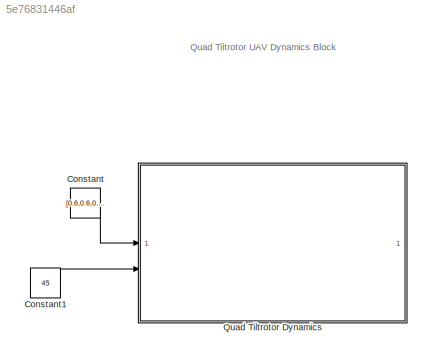
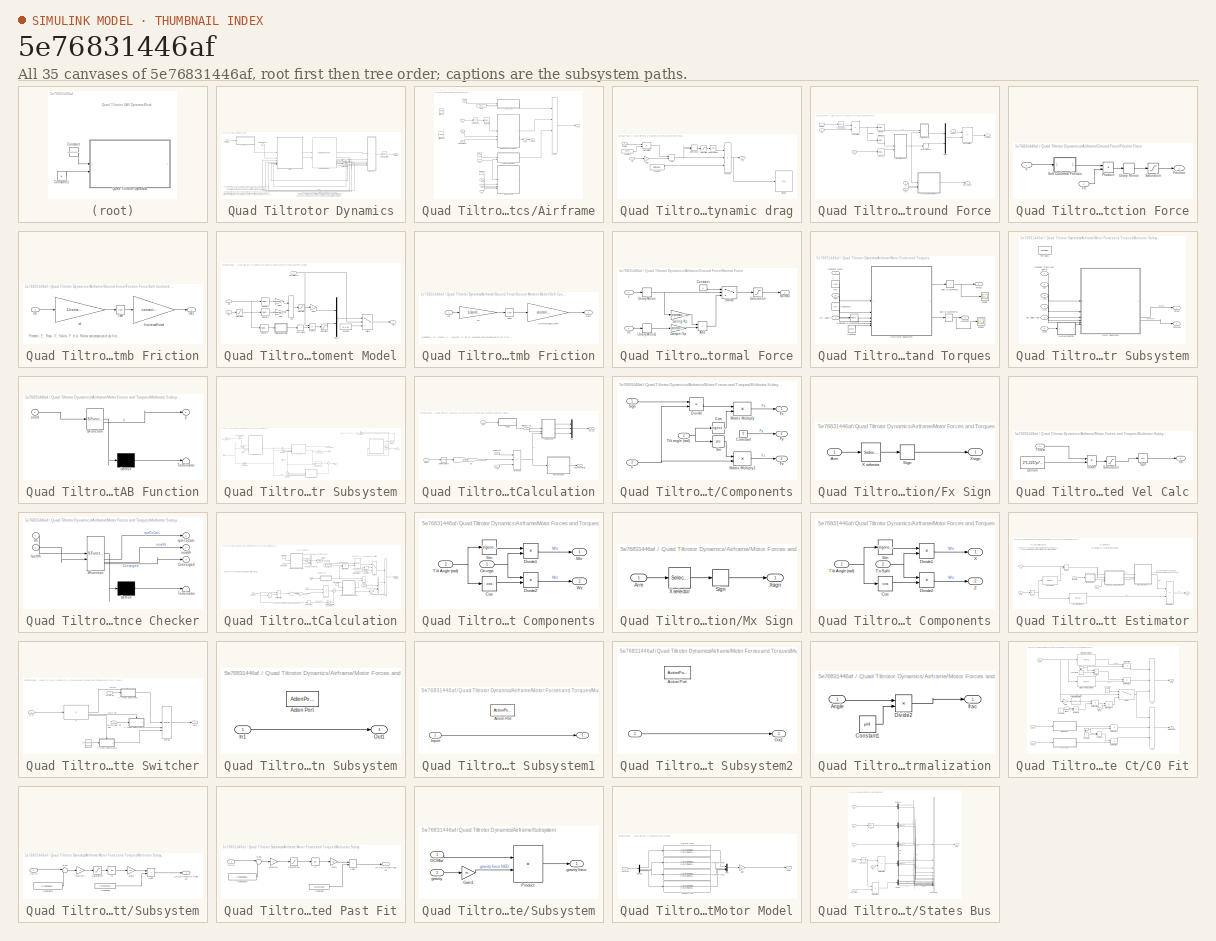
[diagram: thumbnail index - all 35 canvases of the model, root first then tree order]
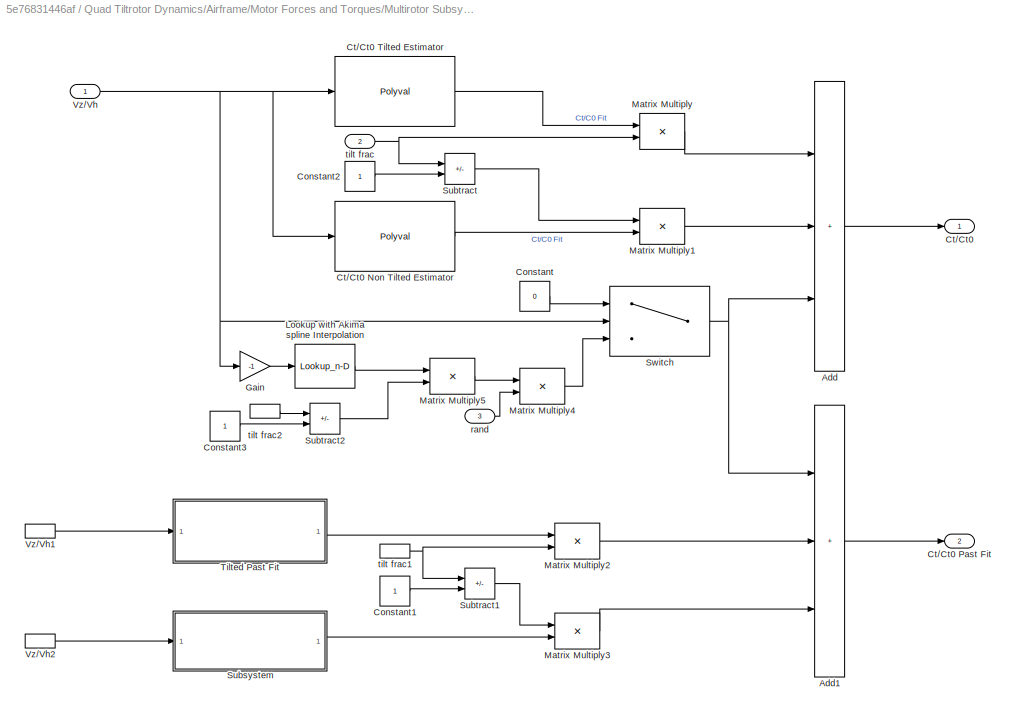
MODEL slx_5e76831446af
KIND model
CONFIG AbsTol = auto
CONFIG EnableMultiTasking = off
CONFIG FixedStep = auto
CONFIG MaxStep = auto
CONFIG MinStep = auto
CONFIG RelTol = 1e-3
CONFIG SampleTimeConstraint = Unconstrained
CONFIG SolverName = VariableStepAuto
CONFIG StartTime = 0.0
CONFIG StopTime = 10.0
BLOCK [Constant] Constant
  Value = [0.6,0.6,0.6,0.6]
BLOCK [Constant] Constant1
  Value = 45
BLOCK [SubSystem] Quad Tiltrotor Dynamics
BLOCK [Reference] Quad Tiltrotor Dynamics/6DOF (Quaternion)  REF=shared6dof/6DOF (Euler Angles)
  LibrarySourceBlock = aerolib6dof2/6DOF (Quaternion)
  SourceBlock = shared6dof/6DOF (Euler Angles)
  SourceType = 6DOF EoM (Body Axis)
BLOCK [SubSystem] Quad Tiltrotor Dynamics/Airframe
BLOCK [SubSystem] Quad Tiltrotor Dynamics/Airframe/Aerodynamic drag
BLOCK [Sum] Quad Tiltrotor Dynamics/Airframe/Aerodynamic drag/Add
  IconShape = rectangular
BLOCK [Constant] Quad Tiltrotor Dynamics/Airframe/Aerodynamic drag/Constant
  Value = [ 0 0 0]
BLOCK [Constant] Quad Tiltrotor Dynamics/Airframe/Aerodynamic drag/Constant1
  Value = CDDrone
BLOCK [Inport] Quad Tiltrotor Dynamics/Airframe/Aerodynamic drag/DCMbe
BLOCK [Display] Quad Tiltrotor Dynamics/Airframe/Aerodynamic drag/Display
  Decimation = 1
BLOCK [DotProduct] Quad Tiltrotor Dynamics/Airframe/Aerodynamic drag/Dot Product
  OutDataTypeStr = Inherit: Inherit via internal rule
BLOCK [Outport] Quad Tiltrotor Dynamics/Airframe/Aerodynamic drag/F_d
BLOCK [Product] Quad Tiltrotor Dynamics/Airframe/Aerodynamic drag/Matrix Multiply
  Multiplication = Matrix(*)
BLOCK [Product] Quad Tiltrotor Dynamics/Airframe/Aerodynamic drag/Product
  Inputs = 3
BLOCK [Saturate] Quad Tiltrotor Dynamics/Airframe/Aerodynamic drag/Saturation
  LowerLimit = 0.0001
  UpperLimit = inf
BLOCK [Sqrt] Quad Tiltrotor Dynamics/Airframe/Aerodynamic drag/Square Root
BLOCK [Inport] Quad Tiltrotor Dynamics/Airframe/Aerodynamic drag/Vb
  Port = 2
BLOCK [Gain] Quad Tiltrotor Dynamics/Airframe/Aerodynamic drag/gain
  Gain = -1
BLOCK [Reference] Quad Tiltrotor Dynamics/Airframe/Artificial RPM  REF=simulink/Sources/Ramp
  SourceBlock = simulink/Sources/Ramp
  SourceType = Ramp
BLOCK [Reference] Quad Tiltrotor Dynamics/Airframe/Artificial Vel  REF=simulink/Sources/Ramp
  SourceBlock = simulink/Sources/Ramp
  SourceType = Ramp
BLOCK [Inport] Quad Tiltrotor Dynamics/Airframe/DCMbe
  Port = 4
BLOCK [InportShadow] Quad Tiltrotor Dynamics/Airframe/DCMbe1
  Port = 4
BLOCK [InportShadow] Quad Tiltrotor Dynamics/Airframe/DCMbe2
  Port = 4
BLOCK [Outport] Quad Tiltrotor Dynamics/Airframe/F_cg
BLOCK [Constant] Quad Tiltrotor Dynamics/Airframe/Gravity
  Value = [0 0 g]
BLOCK [SubSystem] Quad Tiltrotor Dynamics/Airframe/Ground Force
BLOCK [InportShadow] Quad Tiltrotor Dynamics/Airframe/Ground Force/DCMbe
  Port = 2
BLOCK [Inport] Quad Tiltrotor Dynamics/Airframe/Ground Force/DCMbe1
  Port = 2
BLOCK [Outport] Quad Tiltrotor Dynamics/Airframe/Ground Force/F contact
BLOCK [SubSystem] Quad Tiltrotor Dynamics/Airframe/Ground Force/Friction Force
BLOCK [Inport] Quad Tiltrotor Dynamics/Airframe/Ground Force/Friction Force/Fn
  Port = 2
BLOCK [Outport] Quad Tiltrotor Dynamics/Airframe/Ground Force/Friction Force/Friction
BLOCK [Product] Quad Tiltrotor Dynamics/Airframe/Ground Force/Friction Force/Product
BLOCK [Saturate] Quad Tiltrotor Dynamics/Airframe/Ground Force/Friction Force/Saturation
  LowerLimit = -contact.translation.maxFriction
  UpperLimit = contact.translation.maxFriction
BLOCK [SubSystem] Quad Tiltrotor Dynamics/Airframe/Ground Force/Friction Force/Soft Coulomb Friction
BLOCK [Inport] Quad Tiltrotor Dynamics/Airframe/Ground Force/Friction Force/Soft Coulomb Friction/In1
BLOCK [Outport] Quad Tiltrotor Dynamics/Airframe/Ground Force/Friction Force/Soft Coulomb Friction/Out1
BLOCK [Trigonometry] Quad Tiltrotor Dynamics/Airframe/Ground Force/Friction Force/Soft Coulomb Friction/Tanh
  Operator = tanh
BLOCK [Gain] Quad Tiltrotor Dynamics/Airframe/Ground Force/Friction Force/Soft Coulomb Friction/friction coefficient
  Gain = contact.translation.friction
BLOCK [Gain] Quad Tiltrotor Dynamics/Airframe/Ground Force/Friction Force/Soft Coulomb Friction/vd
  Gain = 1/contact.translation.vd
BLOCK [UnaryMinus] Quad Tiltrotor Dynamics/Airframe/Ground Force/Friction Force/Unary Minus
BLOCK [Inport] Quad Tiltrotor Dynamics/Airframe/Ground Force/Friction Force/V
BLOCK [SubSystem] Quad Tiltrotor Dynamics/Airframe/Ground Force/Ground Moment Model
BLOCK [Sum] Quad Tiltrotor Dynamics/Airframe/Ground Force/Ground Moment Model/Add
  IconShape = rectangular
BLOCK [Constant] Quad Tiltrotor Dynamics/Airframe/Ground Force/Ground Moment Model/Constant
  Value = [0 0 0]'
BLOCK [Gain] Quad Tiltrotor Dynamics/Airframe/Ground Force/Ground Moment Model/Gain
  Gain = contact.rotation.spring
BLOCK [Gain] Quad Tiltrotor Dynamics/Airframe/Ground Force/Ground Moment Model/Gain1
  Gain = contact.rotation.damper
BLOCK [Gain] Quad Tiltrotor Dynamics/Airframe/Ground Force/Ground Moment Model/Gain2
  Gain = -1
BLOCK [Outport] Quad Tiltrotor Dynamics/Airframe/Ground Force/Ground Moment Model/Mb
BLOCK [Mux] Quad Tiltrotor Dynamics/Airframe/Ground Force/Ground Moment Model/Mux2
  DisplayOption = bar
  Inputs = 2
BLOCK [Inport] Quad Tiltrotor Dynamics/Airframe/Ground Force/Ground Moment Model/Normal force
BLOCK [Product] Quad Tiltrotor Dynamics/Airframe/Ground Force/Ground Moment Model/Product
BLOCK [Saturate] Quad Tiltrotor Dynamics/Airframe/Ground Force/Ground Moment Model/Saturation
  LowerLimit = -control.rotation.maxMoment
  UpperLimit = control.rotation.maxMoment
BLOCK [Saturate] Quad Tiltrotor Dynamics/Airframe/Ground Force/Ground Moment Model/Saturation1
  LowerLimit = -20*pi/180
  UpperLimit = 20*pi/180
BLOCK [Saturate] Quad Tiltrotor Dynamics/Airframe/Ground Force/Ground Moment Model/Saturation2
  LowerLimit = -control.rotation.maxMoment
  UpperLimit = control.rotation.maxMoment
BLOCK [Selector] Quad Tiltrotor Dynamics/Airframe/Ground Force/Ground Moment Model/Selector3
  IndexOptions = Index vector (dialog)
  Indices = [3]
  InputPortWidth = 3
  OutputSizes = 1
BLOCK [Selector] Quad Tiltrotor Dynamics/Airframe/Ground Force/Ground Moment Model/Selector4
  IndexOptions = Index vector (dialog)
  Indices = [1, 2]
  InputPortWidth = 3
  OutputSizes = 1
BLOCK [Selector] Quad Tiltrotor Dynamics/Airframe/Ground Force/Ground Moment Model/Selector5
  IndexOptions = Index vector (dialog)
  Indices = [1, 2]
  InputPortWidth = 3
  OutputSizes = 1
BLOCK [SubSystem] Quad Tiltrotor Dynamics/Airframe/Ground Force/Ground Moment Model/Soft Coulomb Friction
BLOCK [Inport] Quad Tiltrotor Dynamics/Airframe/Ground Force/Ground Moment Model/Soft Coulomb Friction/In1
BLOCK [Outport] Quad Tiltrotor Dynamics/Airframe/Ground Force/Ground Moment Model/Soft Coulomb Friction/Out1
BLOCK [Trigonometry] Quad Tiltrotor Dynamics/Airframe/Ground Force/Ground Moment Model/Soft Coulomb Friction/Tanh
  Operator = tanh
BLOCK [Gain] Quad Tiltrotor Dynamics/Airframe/Ground Force/Ground Moment Model/Soft Coulomb Friction/friction coefficient
  Gain = control.rotation.friction
BLOCK [Gain] Quad Tiltrotor Dynamics/Airframe/Ground Force/Ground Moment Model/Soft Coulomb Friction/vd
  Gain = 1/control.rotation.vd
BLOCK [Switch] Quad Tiltrotor Dynamics/Airframe/Ground Force/Ground Moment Model/Switch
  Criteria = u2 > Threshold
  InputSameDT = off
  SaturateOnIntegerOverflow = off
BLOCK [UnaryMinus] Quad Tiltrotor Dynamics/Airframe/Ground Force/Ground Moment Model/Unary Minus
BLOCK [Inport] Quad Tiltrotor Dynamics/Airframe/Ground Force/Ground Moment Model/rpy
  Port = 3
BLOCK [Inport] Quad Tiltrotor Dynamics/Airframe/Ground Force/Ground Moment Model/wb
  Port = 2
BLOCK [Product] Quad Tiltrotor Dynamics/Airframe/Ground Force/Matrix Multiply
  Multiplication = Matrix(*)
BLOCK [Product] Quad Tiltrotor Dynamics/Airframe/Ground Force/Matrix Multiply1
  Multiplication = Matrix(*)
BLOCK [Outport] Quad Tiltrotor Dynamics/Airframe/Ground Force/Mb_contact
  Port = 2
BLOCK [Mux] Quad Tiltrotor Dynamics/Airframe/Ground Force/Mux1
  DisplayOption = bar
  Inputs = 2
BLOCK [SubSystem] Quad Tiltrotor Dynamics/Airframe/Ground Force/Normal Force
BLOCK [Sum] Quad Tiltrotor Dynamics/Airframe/Ground Force/Normal Force/Add
  IconShape = rectangular
BLOCK [Constant] Quad Tiltrotor Dynamics/Airframe/Ground Force/Normal Force/Constant
  Value = 0
BLOCK [Gain] Quad Tiltrotor Dynamics/Airframe/Ground Force/Normal Force/Damper Kp
  Gain = -contact.translation.damper
BLOCK [Outport] Quad Tiltrotor Dynamics/Airframe/Ground Force/Normal Force/Normal
BLOCK [Saturate] Quad Tiltrotor Dynamics/Airframe/Ground Force/Normal Force/Saturation
  LowerLimit = 0
  UpperLimit = contact.translation.maxNormal
BLOCK [Gain] Quad Tiltrotor Dynamics/Airframe/Ground Force/Normal Force/Spring Kp
  Gain = -contact.translation.spring
BLOCK [Switch] Quad Tiltrotor Dynamics/Airframe/Ground Force/Normal Force/Switch
  Criteria = u2 > Threshold
  InputSameDT = off
  SaturateOnIntegerOverflow = off
BLOCK [UnaryMinus] Quad Tiltrotor Dynamics/Airframe/Ground Force/Normal Force/Unary Minus
BLOCK [UnaryMinus] Quad Tiltrotor Dynamics/Airframe/Ground Force/Normal Force/Unary Minus1
BLOCK [Inport] Quad Tiltrotor Dynamics/Airframe/Ground Force/Normal Force/Vz
BLOCK [Inport] Quad Tiltrotor Dynamics/Airframe/Ground Force/Normal Force/Z
  Port = 2
BLOCK [Selector] Quad Tiltrotor Dynamics/Airframe/Ground Force/Selector1
  IndexOptions = Index vector (dialog)
  Indices = [3]
  InputPortWidth = 3
  OutputSizes = 1
BLOCK [Selector] Quad Tiltrotor Dynamics/Airframe/Ground Force/Selector2
  IndexOptions = Index vector (dialog)
  Indices = [1,2]
  InputPortWidth = 3
  OutputSizes = 1
BLOCK [Selector] Quad Tiltrotor Dynamics/Airframe/Ground Force/Selector3
  IndexOptions = Index vector (dialog)
  Indices = [3]
  InputPortWidth = 3
  OutputSizes = 1
BLOCK [Math] Quad Tiltrotor Dynamics/Airframe/Ground Force/Transpose1
  Operator = transpose
BLOCK [UnaryMinus] Quad Tiltrotor Dynamics/Airframe/Ground Force/Unary Minus1
BLOCK [Inport] Quad Tiltrotor Dynamics/Airframe/Ground Force/Vb
BLOCK [Inport] Quad Tiltrotor Dynamics/Airframe/Ground Force/Wb
  Port = 4
BLOCK [Inport] Quad Tiltrotor Dynamics/Airframe/Ground Force/Xe
  Port = 3
BLOCK [Inport] Quad Tiltrotor Dynamics/Airframe/Ground Force/rpy
  Port = 5
BLOCK [Outport] Quad Tiltrotor Dynamics/Airframe/M_cg
  Port = 2
BLOCK [SubSystem] Quad Tiltrotor Dynamics/Airframe/Motor Forces and Torques
BLOCK [Constant] Quad Tiltrotor Dynamics/Airframe/Motor Forces and Torques/Constant
  Value = [1 2 3 4]
BLOCK [Constant] Quad Tiltrotor Dynamics/Airframe/Motor Forces and Torques/Constant1
  Value = Arm
BLOCK [Reference] Quad Tiltrotor Dynamics/Airframe/Motor Forces and Torques/Degrees to Radians  REF=simulink_extras/Transformations/Degrees to
Radians
  SourceBlock = simulink_extras/Transformations/Degrees to\nRadians
  SourceType = DegreesToRadians
BLOCK [Inport] Quad Tiltrotor Dynamics/Airframe/Motor Forces and Torques/Descent Rate
BLOCK [Outport] Quad Tiltrotor Dynamics/Airframe/Motor Forces and Torques/Moment
  Port = 2
BLOCK [SubSystem] Quad Tiltrotor Dynamics/Airframe/Motor Forces and Torques/Multirotor Subsystem
  TreatAsAtomicUnit = on
BLOCK [Inport] Quad Tiltrotor Dynamics/Airframe/Motor Forces and Torques/Multirotor Subsystem/Arm
  Partition = on
  PartitionDimension = 2
  PartitionOffset = 0
  PartitionWidth = 1
  Port = 4
BLOCK [Inport] Quad Tiltrotor Dynamics/Airframe/Motor Forces and Torques/Multirotor Subsystem/Descent Rate (+ve down)
  NameLocation = top
BLOCK [ForEach] Quad Tiltrotor Dynamics/Airframe/Motor Forces and Torques/Multirotor Subsystem/For Each
  DisableCoverage = on
BLOCK [Inport] Quad Tiltrotor Dynamics/Airframe/Motor Forces and Torques/Multirotor Subsystem/Input
  Partition = on
  PartitionDimension = 1
  PartitionOffset = 0
  PartitionWidth = 1
  Port = 6
BLOCK [SubSystem] Quad Tiltrotor Dynamics/Airframe/Motor Forces and Torques/Multirotor Subsystem/MATLAB Function
  ErrorFcn = Stateflow.Translate.translate
  PermitHierarchicalResolution = ExplicitOnly
  SFBlockType = MATLAB Function
  SystemSampleTime = SampleTime
  TreatAsAtomicUnit = on
BLOCK [Demux] Quad Tiltrotor Dynamics/Airframe/Motor Forces and Torques/Multirotor Subsystem/MATLAB Function/ Demux 
  Outputs = 1
BLOCK [S-Function] Quad Tiltrotor Dynamics/Airframe/Motor Forces and Torques/Multirotor Subsystem/MATLAB Function/ SFunction 
  EnableBusSupport = on
  FunctionName = sf_sfun
  PortCounts = [1 2]
  SFcnIsStateOwnerBlock = off
  SFunctionDeploymentMode = off
  Tag = Stateflow S-Function 2
BLOCK [Terminator] Quad Tiltrotor Dynamics/Airframe/Motor Forces and Torques/Multirotor Subsystem/MATLAB Function/ Terminator 
BLOCK [Inport] Quad Tiltrotor Dynamics/Airframe/Motor Forces and Torques/Multirotor Subsystem/MATLAB Function/seed
BLOCK [Outport] Quad Tiltrotor Dynamics/Airframe/Motor Forces and Torques/Multirotor Subsystem/MATLAB Function/y
BLOCK [Outport] Quad Tiltrotor Dynamics/Airframe/Motor Forces and Torques/Multirotor Subsystem/Moment
  ConcatenationDimension = 2
  Port = 2
BLOCK [SubSystem] Quad Tiltrotor Dynamics/Airframe/Motor Forces and Torques/Multirotor Subsystem/Rotor Subsystem
BLOCK [Reference] Quad Tiltrotor Dynamics/Airframe/Motor Forces and Torques/Multirotor Subsystem/Rotor Subsystem/3x3 Cross Product  REF=sharedutil/3x3 Cross Product
  LibrarySourceBlock = aerolibutil/3x3 Cross Product
  SourceBlock = sharedutil/3x3 Cross Product
  SourceType = CrossProduct
BLOCK [Inport] Quad Tiltrotor Dynamics/Airframe/Motor Forces and Torques/Multirotor Subsystem/Rotor Subsystem/Arm
  Port = 4
BLOCK [BusCreator] Quad Tiltrotor Dynamics/Airframe/Motor Forces and Torques/Multirotor Subsystem/Rotor Subsystem/Bus Creator
  Commented = on
  DisplayOption = bar
  InheritFromInputs = on
  Inputs = 2
  NameLocation = top
BLOCK [Outport] Quad Tiltrotor Dynamics/Airframe/Motor Forces and Torques/Multirotor Subsystem/Rotor Subsystem/Converged
BLOCK [Inport] Quad Tiltrotor Dynamics/Airframe/Motor Forces and Torques/Multirotor Subsystem/Rotor Subsystem/Descent Rate (+ve down)
BLOCK [SubSystem] Quad Tiltrotor Dynamics/Airframe/Motor Forces and Torques/Multirotor Subsystem/Rotor Subsystem/Force Calculation
BLOCK [Inport] Quad Tiltrotor Dynamics/Airframe/Motor Forces and Torques/Multirotor Subsystem/Rotor Subsystem/Force Calculation/Arm
  Port = 5
BLOCK [Inport] Quad Tiltrotor Dynamics/Airframe/Motor Forces and Torques/Multirotor Subsystem/Rotor Subsystem/Force Calculation/Coeff. Thrust
BLOCK [SubSystem] Quad Tiltrotor Dynamics/Airframe/Motor Forces and Torques/Multirotor Subsystem/Rotor Subsystem/Force Calculation/Components
BLOCK [Constant] Quad Tiltrotor Dynamics/Airframe/Motor Forces and Torques/Multirotor Subsystem/Rotor Subsystem/Force Calculation/Components/Constant
  Value = 0
BLOCK [Trigonometry] Quad Tiltrotor Dynamics/Airframe/Motor Forces and Torques/Multirotor Subsystem/Rotor Subsystem/Force Calculation/Components/Cos
BLOCK [Product] Quad Tiltrotor Dynamics/Airframe/Motor Forces and Torques/Multirotor Subsystem/Rotor Subsystem/Force Calculation/Components/Divide
  Inputs = **
BLOCK [Inport] Quad Tiltrotor Dynamics/Airframe/Motor Forces and Torques/Multirotor Subsystem/Rotor Subsystem/Force Calculation/Components/F
  Port = 3
BLOCK [Outport] Quad Tiltrotor Dynamics/Airframe/Motor Forces and Torques/Multirotor Subsystem/Rotor Subsystem/Force Calculation/Components/Fx
BLOCK [Outport] Quad Tiltrotor Dynamics/Airframe/Motor Forces and Torques/Multirotor Subsystem/Rotor Subsystem/Force Calculation/Components/Fy
  Port = 2
BLOCK [Outport] Quad Tiltrotor Dynamics/Airframe/Motor Forces and Torques/Multirotor Subsystem/Rotor Subsystem/Force Calculation/Components/Fz
  Port = 3
BLOCK [Product] Quad Tiltrotor Dynamics/Airframe/Motor Forces and Torques/Multirotor Subsystem/Rotor Subsystem/Force Calculation/Components/Matrix Multiply
BLOCK [Product] Quad Tiltrotor Dynamics/Airframe/Motor Forces and Torques/Multirotor Subsystem/Rotor Subsystem/Force Calculation/Components/Matrix Multiply1
BLOCK [Inport] Quad Tiltrotor Dynamics/Airframe/Motor Forces and Torques/Multirotor Subsystem/Rotor Subsystem/Force Calculation/Components/Sign
BLOCK [Trigonometry] Quad Tiltrotor Dynamics/Airframe/Motor Forces and Torques/Multirotor Subsystem/Rotor Subsystem/Force Calculation/Components/Sin
  Operator = cos
BLOCK [Inport] Quad Tiltrotor Dynamics/Airframe/Motor Forces and Torques/Multirotor Subsystem/Rotor Subsystem/Force Calculation/Components/Tilt angle (rad)
  Port = 2
BLOCK [SubSystem] Quad Tiltrotor Dynamics/Airframe/Motor Forces and Torques/Multirotor Subsystem/Rotor Subsystem/Force Calculation/Fx Sign
BLOCK [Inport] Quad Tiltrotor Dynamics/Airframe/Motor Forces and Torques/Multirotor Subsystem/Rotor Subsystem/Force Calculation/Fx Sign/Arm
BLOCK [Signum] Quad Tiltrotor Dynamics/Airframe/Motor Forces and Torques/Multirotor Subsystem/Rotor Subsystem/Force Calculation/Fx Sign/Sign
BLOCK [Selector] Quad Tiltrotor Dynamics/Airframe/Motor Forces and Torques/Multirotor Subsystem/Rotor Subsystem/Force Calculation/Fx Sign/X selector
  IndexOptions = Index vector (dialog)
  Indices = [1]
  InputPortWidth = 3
  OutputSizes = 1
BLOCK [Outport] Quad Tiltrotor Dynamics/Airframe/Motor Forces and Torques/Multirotor Subsystem/Rotor Subsystem/Force Calculation/Fx Sign/Xsign
BLOCK [SubSystem] Quad Tiltrotor Dynamics/Airframe/Motor Forces and Torques/Multirotor Subsystem/Rotor Subsystem/Force Calculation/Induced Vel Calc
BLOCK [Constant] Quad Tiltrotor Dynamics/Airframe/Motor Forces and Torques/Multirotor Subsystem/Rotor Subsystem/Force Calculation/Induced Vel Calc/Denom
  Value = 2*1.225*pi*R^2
BLOCK [Product] Quad Tiltrotor Dynamics/Airframe/Motor Forces and Torques/Multirotor Subsystem/Rotor Subsystem/Force Calculation/Induced Vel Calc/Divide
  Inputs = */
BLOCK [Saturate] Quad Tiltrotor Dynamics/Airframe/Motor Forces and Torques/Multirotor Subsystem/Rotor Subsystem/Force Calculation/Induced Vel Calc/Saturation
  LowerLimit = 0.0001
  UpperLimit = inf
BLOCK [Sqrt] Quad Tiltrotor Dynamics/Airframe/Motor Forces and Torques/Multirotor Subsystem/Rotor Subsystem/Force Calculation/Induced Vel Calc/Sqrt
  OutDataTypeStr = double
BLOCK [Inport] Quad Tiltrotor Dynamics/Airframe/Motor Forces and Torques/Multirotor Subsystem/Rotor Subsystem/Force Calculation/Induced Vel Calc/Thrust
BLOCK [Outport] Quad Tiltrotor Dynamics/Airframe/Motor Forces and Torques/Multirotor Subsystem/Rotor Subsystem/Force Calculation/Induced Vel Calc/Vh
BLOCK [Outport] Quad Tiltrotor Dynamics/Airframe/Motor Forces and Torques/Multirotor Subsystem/Rotor Subsystem/Force Calculation/Induced Velocity
BLOCK [Math] Quad Tiltrotor Dynamics/Airframe/Motor Forces and Torques/Multirotor Subsystem/Rotor Subsystem/Force Calculation/Math Function3
  Operator = square
  SignedPower = on
BLOCK [Mux] Quad Tiltrotor Dynamics/Airframe/Motor Forces and Torques/Multirotor Subsystem/Rotor Subsystem/Force Calculation/Mux
  DisplayOption = bar
  Inputs = 3
BLOCK [Inport] Quad Tiltrotor Dynamics/Airframe/Motor Forces and Torques/Multirotor Subsystem/Rotor Subsystem/Force Calculation/Omega
  Port = 2
BLOCK [Product] Quad Tiltrotor Dynamics/Airframe/Motor Forces and Torques/Multirotor Subsystem/Rotor Subsystem/Force Calculation/Product6
  Inputs = 3
BLOCK [Gain] Quad Tiltrotor Dynamics/Airframe/Motor Forces and Torques/Multirotor Subsystem/Rotor Subsystem/Force Calculation/R3
  Gain = R*R*pi*R*R
BLOCK [Outport] Quad Tiltrotor Dynamics/Airframe/Motor Forces and Torques/Multirotor Subsystem/Rotor Subsystem/Force Calculation/Thrust
  Port = 2
BLOCK [Inport] Quad Tiltrotor Dynamics/Airframe/Motor Forces and Torques/Multirotor Subsystem/Rotor Subsystem/Force Calculation/Tilt angle (rad)
  Port = 4
BLOCK [Inport] Quad Tiltrotor Dynamics/Airframe/Motor Forces and Torques/Multirotor Subsystem/Rotor Subsystem/Force Calculation/rho
  Port = 3
BLOCK [Outport] Quad Tiltrotor Dynamics/Airframe/Motor Forces and Torques/Multirotor Subsystem/Rotor Subsystem/Fxyz
  Port = 3
BLOCK [SubSystem] Quad Tiltrotor Dynamics/Airframe/Motor Forces and Torques/Multirotor Subsystem/Rotor Subsystem/Induced Vel Convergence Checker
  Commented = on
  ErrorFcn = Stateflow.Translate.translate
  PermitHierarchicalResolution = ExplicitOnly
  SFBlockType = MATLAB Function
  TreatAsAtomicUnit = on
BLOCK [Demux] Quad Tiltrotor Dynamics/Airframe/Motor Forces and Torques/Multirotor Subsystem/Rotor Subsystem/Induced Vel Convergence Checker/ Demux 
  Outputs = 1
BLOCK [S-Function] Quad Tiltrotor Dynamics/Airframe/Motor Forces and Torques/Multirotor Subsystem/Rotor Subsystem/Induced Vel Convergence Checker/ SFunction 
  EnableBusSupport = on
  FunctionName = sf_sfun
  Parameters = convergence_threshold
  PortCounts = [2 4]
  SFcnIsStateOwnerBlock = off
  SFunctionDeploymentMode = off
  Tag = Stateflow S-Function 4
BLOCK [Terminator] Quad Tiltrotor Dynamics/Airframe/Motor Forces and Torques/Multirotor Subsystem/Rotor Subsystem/Induced Vel Convergence Checker/ Terminator 
BLOCK [Outport] Quad Tiltrotor Dynamics/Airframe/Motor Forces and Torques/Multirotor Subsystem/Rotor Subsystem/Induced Vel Convergence Checker/Converged
  Port = 3
BLOCK [Inport] Quad Tiltrotor Dynamics/Airframe/Motor Forces and Torques/Multirotor Subsystem/Rotor Subsystem/Induced Vel Convergence Checker/Vh
BLOCK [Inport] Quad Tiltrotor Dynamics/Airframe/Motor Forces and Torques/Multirotor Subsystem/Rotor Subsystem/Induced Vel Convergence Checker/lastVh
  Port = 2
BLOCK [Outport] Quad Tiltrotor Dynamics/Airframe/Motor Forces and Torques/Multirotor Subsystem/Rotor Subsystem/Induced Vel Convergence Checker/newVh
  Port = 2
BLOCK [Outport] Quad Tiltrotor Dynamics/Airframe/Motor Forces and Torques/Multirotor Subsystem/Rotor Subsystem/Induced Vel Convergence Checker/rpmToCalc
BLOCK [Outport] Quad Tiltrotor Dynamics/Airframe/Motor Forces and Torques/Multirotor Subsystem/Rotor Subsystem/Induced Velocity
  Port = 2
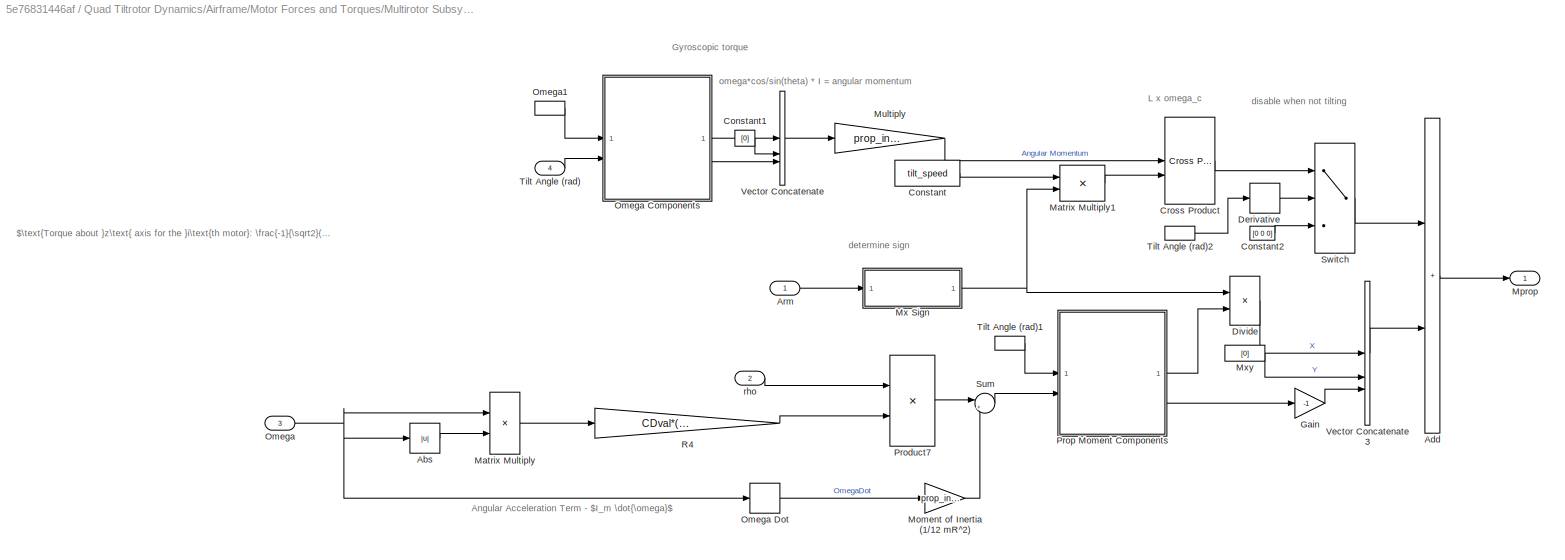
BLOCK [SubSystem] Quad Tiltrotor Dynamics/Airframe/Motor Forces and Torques/Multirotor Subsystem/Rotor Subsystem/Moment Calculation
BLOCK [SubSystem] Quad Tiltrotor Dynamics/Airframe/Motor Forces and Torques/Multirotor Subsystem/Rotor Subsystem/Moment Calculation/ Omega Components
BLOCK [Trigonometry] Quad Tiltrotor Dynamics/Airframe/Motor Forces and Torques/Multirotor Subsystem/Rotor Subsystem/Moment Calculation/ Omega Components/Cos
  Operator = cos
BLOCK [Product] Quad Tiltrotor Dynamics/Airframe/Motor Forces and Torques/Multirotor Subsystem/Rotor Subsystem/Moment Calculation/ Omega Components/Divide1
  Inputs = **
BLOCK [Product] Quad Tiltrotor Dynamics/Airframe/Motor Forces and Torques/Multirotor Subsystem/Rotor Subsystem/Moment Calculation/ Omega Components/Divide2
  Inputs = **
BLOCK [Inport] Quad Tiltrotor Dynamics/Airframe/Motor Forces and Torques/Multirotor Subsystem/Rotor Subsystem/Moment Calculation/ Omega Components/Omega
BLOCK [Trigonometry] Quad Tiltrotor Dynamics/Airframe/Motor Forces and Torques/Multirotor Subsystem/Rotor Subsystem/Moment Calculation/ Omega Components/Sin
BLOCK [Inport] Quad Tiltrotor Dynamics/Airframe/Motor Forces and Torques/Multirotor Subsystem/Rotor Subsystem/Moment Calculation/ Omega Components/Tilt Angle (rad)
  Port = 2
BLOCK [Outport] Quad Tiltrotor Dynamics/Airframe/Motor Forces and Torques/Multirotor Subsystem/Rotor Subsystem/Moment Calculation/ Omega Components/Wx
BLOCK [Outport] Quad Tiltrotor Dynamics/Airframe/Motor Forces and Torques/Multirotor Subsystem/Rotor Subsystem/Moment Calculation/ Omega Components/Wz
  Port = 2
BLOCK [Abs] Quad Tiltrotor Dynamics/Airframe/Motor Forces and Torques/Multirotor Subsystem/Rotor Subsystem/Moment Calculation/Abs
  SaturateOnIntegerOverflow = off
BLOCK [Sum] Quad Tiltrotor Dynamics/Airframe/Motor Forces and Torques/Multirotor Subsystem/Rotor Subsystem/Moment Calculation/Add
  IconShape = rectangular
  NameLocation = right
BLOCK [Inport] Quad Tiltrotor Dynamics/Airframe/Motor Forces and Torques/Multirotor Subsystem/Rotor Subsystem/Moment Calculation/Arm
BLOCK [Constant] Quad Tiltrotor Dynamics/Airframe/Motor Forces and Torques/Multirotor Subsystem/Rotor Subsystem/Moment Calculation/Constant
  Value = tilt_speed
BLOCK [Constant] Quad Tiltrotor Dynamics/Airframe/Motor Forces and Torques/Multirotor Subsystem/Rotor Subsystem/Moment Calculation/Constant1
  Value = [0]
BLOCK [Constant] Quad Tiltrotor Dynamics/Airframe/Motor Forces and Torques/Multirotor Subsystem/Rotor Subsystem/Moment Calculation/Constant2
  Value = [0 0 0]
BLOCK [Reference] Quad Tiltrotor Dynamics/Airframe/Motor Forces and Torques/Multirotor Subsystem/Rotor Subsystem/Moment Calculation/Cross Product  REF=matrix_library/Cross Product
  LibrarySourceBlock = simulink/Matrix\nOperations/Cross Product
  SourceBlock = matrix_library/Cross Product
  SourceType = CrossProduct
BLOCK [Derivative] Quad Tiltrotor Dynamics/Airframe/Motor Forces and Torques/Multirotor Subsystem/Rotor Subsystem/Moment Calculation/Derivative
BLOCK [Product] Quad Tiltrotor Dynamics/Airframe/Motor Forces and Torques/Multirotor Subsystem/Rotor Subsystem/Moment Calculation/Divide
  Inputs = **
BLOCK [Gain] Quad Tiltrotor Dynamics/Airframe/Motor Forces and Torques/Multirotor Subsystem/Rotor Subsystem/Moment Calculation/Gain
  Gain = -1
BLOCK [Product] Quad Tiltrotor Dynamics/Airframe/Motor Forces and Torques/Multirotor Subsystem/Rotor Subsystem/Moment Calculation/Matrix Multiply
BLOCK [Product] Quad Tiltrotor Dynamics/Airframe/Motor Forces and Torques/Multirotor Subsystem/Rotor Subsystem/Moment Calculation/Matrix Multiply1
BLOCK [Gain] Quad Tiltrotor Dynamics/Airframe/Motor Forces and Torques/Multirotor Subsystem/Rotor Subsystem/Moment Calculation/Moment of Inertia (1//12 mR^2)
  Gain = prop_inertia
BLOCK [Outport] Quad Tiltrotor Dynamics/Airframe/Motor Forces and Torques/Multirotor Subsystem/Rotor Subsystem/Moment Calculation/Mprop
BLOCK [Gain] Quad Tiltrotor Dynamics/Airframe/Motor Forces and Torques/Multirotor Subsystem/Rotor Subsystem/Moment Calculation/Multiply
  Gain = prop_inertia
BLOCK [SubSystem] Quad Tiltrotor Dynamics/Airframe/Motor Forces and Torques/Multirotor Subsystem/Rotor Subsystem/Moment Calculation/Mx Sign
BLOCK [Inport] Quad Tiltrotor Dynamics/Airframe/Motor Forces and Torques/Multirotor Subsystem/Rotor Subsystem/Moment Calculation/Mx Sign/Arm
BLOCK [Signum] Quad Tiltrotor Dynamics/Airframe/Motor Forces and Torques/Multirotor Subsystem/Rotor Subsystem/Moment Calculation/Mx Sign/Sign
BLOCK [Selector] Quad Tiltrotor Dynamics/Airframe/Motor Forces and Torques/Multirotor Subsystem/Rotor Subsystem/Moment Calculation/Mx Sign/X selector
  IndexOptions = Index vector (dialog)
  Indices = [1]
  InputPortWidth = 3
  OutputSizes = 1
BLOCK [Outport] Quad Tiltrotor Dynamics/Airframe/Motor Forces and Torques/Multirotor Subsystem/Rotor Subsystem/Moment Calculation/Mx Sign/Xsign
BLOCK [Constant] Quad Tiltrotor Dynamics/Airframe/Motor Forces and Torques/Multirotor Subsystem/Rotor Subsystem/Moment Calculation/Mxy
  Value = [0]
BLOCK [Inport] Quad Tiltrotor Dynamics/Airframe/Motor Forces and Torques/Multirotor Subsystem/Rotor Subsystem/Moment Calculation/Omega
  Port = 3
BLOCK [Derivative] Quad Tiltrotor Dynamics/Airframe/Motor Forces and Torques/Multirotor Subsystem/Rotor Subsystem/Moment Calculation/Omega Dot
BLOCK [InportShadow] Quad Tiltrotor Dynamics/Airframe/Motor Forces and Torques/Multirotor Subsystem/Rotor Subsystem/Moment Calculation/Omega1
  Port = 3
BLOCK [Product] Quad Tiltrotor Dynamics/Airframe/Motor Forces and Torques/Multirotor Subsystem/Rotor Subsystem/Moment Calculation/Product7
BLOCK [SubSystem] Quad Tiltrotor Dynamics/Airframe/Motor Forces and Torques/Multirotor Subsystem/Rotor Subsystem/Moment Calculation/Prop Moment Components
BLOCK [Trigonometry] Quad Tiltrotor Dynamics/Airframe/Motor Forces and Torques/Multirotor Subsystem/Rotor Subsystem/Moment Calculation/Prop Moment Components/Cos
  Operator = cos
BLOCK [Product] Quad Tiltrotor Dynamics/Airframe/Motor Forces and Torques/Multirotor Subsystem/Rotor Subsystem/Moment Calculation/Prop Moment Components/Divide1
  Inputs = **
BLOCK [Product] Quad Tiltrotor Dynamics/Airframe/Motor Forces and Torques/Multirotor Subsystem/Rotor Subsystem/Moment Calculation/Prop Moment Components/Divide2
  Inputs = **
BLOCK [Trigonometry] Quad Tiltrotor Dynamics/Airframe/Motor Forces and Torques/Multirotor Subsystem/Rotor Subsystem/Moment Calculation/Prop Moment Components/Sin
BLOCK [Inport] Quad Tiltrotor Dynamics/Airframe/Motor Forces and Torques/Multirotor Subsystem/Rotor Subsystem/Moment Calculation/Prop Moment Components/Tilt Angle (rad)
BLOCK [Inport] Quad Tiltrotor Dynamics/Airframe/Motor Forces and Torques/Multirotor Subsystem/Rotor Subsystem/Moment Calculation/Prop Moment Components/To Split
  Port = 2
BLOCK [Outport] Quad Tiltrotor Dynamics/Airframe/Motor Forces and Torques/Multirotor Subsystem/Rotor Subsystem/Moment Calculation/Prop Moment Components/X
BLOCK [Outport] Quad Tiltrotor Dynamics/Airframe/Motor Forces and Torques/Multirotor Subsystem/Rotor Subsystem/Moment Calculation/Prop Moment Components/Z
  Port = 2
BLOCK [Gain] Quad Tiltrotor Dynamics/Airframe/Motor Forces and Torques/Multirotor Subsystem/Rotor Subsystem/Moment Calculation/R4
  Gain = CDval*(pi*R*R)*R*R*R
BLOCK [Sum] Quad Tiltrotor Dynamics/Airframe/Motor Forces and Torques/Multirotor Subsystem/Rotor Subsystem/Moment Calculation/Sum
  Inputs = |++
BLOCK [Switch] Quad Tiltrotor Dynamics/Airframe/Motor Forces and Torques/Multirotor Subsystem/Rotor Subsystem/Moment Calculation/Switch
  Criteria = u2 > Threshold
  InputSameDT = off
  SaturateOnIntegerOverflow = off
BLOCK [Inport] Quad Tiltrotor Dynamics/Airframe/Motor Forces and Torques/Multirotor Subsystem/Rotor Subsystem/Moment Calculation/Tilt Angle (rad)
  Port = 4
BLOCK [InportShadow] Quad Tiltrotor Dynamics/Airframe/Motor Forces and Torques/Multirotor Subsystem/Rotor Subsystem/Moment Calculation/Tilt Angle (rad)1
  Port = 4
BLOCK [InportShadow] Quad Tiltrotor Dynamics/Airframe/Motor Forces and Torques/Multirotor Subsystem/Rotor Subsystem/Moment Calculation/Tilt Angle (rad)2
  Port = 4
BLOCK [Concatenate] Quad Tiltrotor Dynamics/Airframe/Motor Forces and Torques/Multirotor Subsystem/Rotor Subsystem/Moment Calculation/Vector Concatenate
  NumInputs = 3
BLOCK [Concatenate] Quad Tiltrotor Dynamics/Airframe/Motor Forces and Torques/Multirotor Subsystem/Rotor Subsystem/Moment Calculation/Vector Concatenate3
  NumInputs = 3
BLOCK [Inport] Quad Tiltrotor Dynamics/Airframe/Motor Forces and Torques/Multirotor Subsystem/Rotor Subsystem/Moment Calculation/rho
  Port = 2
BLOCK [Outport] Quad Tiltrotor Dynamics/Airframe/Motor Forces and Torques/Multirotor Subsystem/Rotor Subsystem/Mxyz
  NameLocation = right
  Port = 4
BLOCK [Gain] Quad Tiltrotor Dynamics/Airframe/Motor Forces and Torques/Multirotor Subsystem/Rotor Subsystem/NED conversion
  Gain = -1
BLOCK [Gain] Quad Tiltrotor Dynamics/Airframe/Motor Forces and Torques/Multirotor Subsystem/Rotor Subsystem/NED conversion for estimators
  Gain = -1
BLOCK [Gain] Quad Tiltrotor Dynamics/Airframe/Motor Forces and Torques/Multirotor Subsystem/Rotor Subsystem/RPM to Omega
  Gain = 2*pi/60
BLOCK [Sum] Quad Tiltrotor Dynamics/Airframe/Motor Forces and Torques/Multirotor Subsystem/Rotor Subsystem/Sum
  Inputs = |++
BLOCK [Inport] Quad Tiltrotor Dynamics/Airframe/Motor Forces and Torques/Multirotor Subsystem/Rotor Subsystem/Tilt Angle (rad)
  Port = 5
BLOCK [InportShadow] Quad Tiltrotor Dynamics/Airframe/Motor Forces and Torques/Multirotor Subsystem/Rotor Subsystem/Tilt Angle (rad)1
  Port = 5
BLOCK [InportShadow] Quad Tiltrotor Dynamics/Airframe/Motor Forces and Torques/Multirotor Subsystem/Rotor Subsystem/Tilt Angle (rad)2
  Port = 5
BLOCK [SubSystem] Quad Tiltrotor Dynamics/Airframe/Motor Forces and Torques/Multirotor Subsystem/Rotor Subsystem/Tilted Ct Estimator
BLOCK [Abs] Quad Tiltrotor Dynamics/Airframe/Motor Forces and Torques/Multirotor Subsystem/Rotor Subsystem/Tilted Ct Estimator/Abs
  SaturateOnIntegerOverflow = off
BLOCK [Product] Quad Tiltrotor Dynamics/Airframe/Motor Forces and Torques/Multirotor Subsystem/Rotor Subsystem/Tilted Ct Estimator/Calculate Ct
  Inputs = **
BLOCK [Outport] Quad Tiltrotor Dynamics/Airframe/Motor Forces and Torques/Multirotor Subsystem/Rotor Subsystem/Tilted Ct Estimator/Ct
BLOCK [SubSystem] Quad Tiltrotor Dynamics/Airframe/Motor Forces and Torques/Multirotor Subsystem/Rotor Subsystem/Tilted Ct Estimator/Ct//C0 State Switcher
BLOCK [Inport] Quad Tiltrotor Dynamics/Airframe/Motor Forces and Torques/Multirotor Subsystem/Rotor Subsystem/Tilted Ct Estimator/Ct//C0 State Switcher/ Vz//Vh
BLOCK [Constant] Quad Tiltrotor Dynamics/Airframe/Motor Forces and Torques/Multirotor Subsystem/Rotor Subsystem/Tilted Ct Estimator/Ct//C0 State Switcher/Constant
  Value = 1.00463796511
BLOCK [Inport] Quad Tiltrotor Dynamics/Airframe/Motor Forces and Torques/Multirotor Subsystem/Rotor Subsystem/Tilted Ct Estimator/Ct//C0 State Switcher/Ct//C0 Fit
  Port = 2
BLOCK [Inport] Quad Tiltrotor Dynamics/Airframe/Motor Forces and Torques/Multirotor Subsystem/Rotor Subsystem/Tilted Ct Estimator/Ct//C0 State Switcher/Ct//Ct0 Past Fit
  Port = 3
BLOCK [If] Quad Tiltrotor Dynamics/Airframe/Motor Forces and Torques/Multirotor Subsystem/Rotor Subsystem/Tilted Ct Estimator/Ct//C0 State Switcher/If
  ElseIfExpressions = u1 < -2
  IfExpression = u1 >= -2 & u1 <= 0
BLOCK [SubSystem] Quad Tiltrotor Dynamics/Airframe/Motor Forces and Torques/Multirotor Subsystem/Rotor Subsystem/Tilted Ct Estimator/Ct//C0 State Switcher/If Action Subsystem
  TreatAsAtomicUnit = on
BLOCK [ActionPort] Quad Tiltrotor Dynamics/Airframe/Motor Forces and Torques/Multirotor Subsystem/Rotor Subsystem/Tilted Ct Estimator/Ct//C0 State Switcher/If Action Subsystem/Action Port
BLOCK [Inport] Quad Tiltrotor Dynamics/Airframe/Motor Forces and Torques/Multirotor Subsystem/Rotor Subsystem/Tilted Ct Estimator/Ct//C0 State Switcher/If Action Subsystem/In1
BLOCK [Outport] Quad Tiltrotor Dynamics/Airframe/Motor Forces and Torques/Multirotor Subsystem/Rotor Subsystem/Tilted Ct Estimator/Ct//C0 State Switcher/If Action Subsystem/Out1
BLOCK [SubSystem] Quad Tiltrotor Dynamics/Airframe/Motor Forces and Torques/Multirotor Subsystem/Rotor Subsystem/Tilted Ct Estimator/Ct//C0 State Switcher/If Action Subsystem1
  TreatAsAtomicUnit = on
BLOCK [Outport] Quad Tiltrotor Dynamics/Airframe/Motor Forces and Torques/Multirotor Subsystem/Rotor Subsystem/Tilted Ct Estimator/Ct//C0 State Switcher/If Action Subsystem1/ 
BLOCK [ActionPort] Quad Tiltrotor Dynamics/Airframe/Motor Forces and Torques/Multirotor Subsystem/Rotor Subsystem/Tilted Ct Estimator/Ct//C0 State Switcher/If Action Subsystem1/Action Port
BLOCK [Inport] Quad Tiltrotor Dynamics/Airframe/Motor Forces and Torques/Multirotor Subsystem/Rotor Subsystem/Tilted Ct Estimator/Ct//C0 State Switcher/If Action Subsystem1/Inport
BLOCK [SubSystem] Quad Tiltrotor Dynamics/Airframe/Motor Forces and Torques/Multirotor Subsystem/Rotor Subsystem/Tilted Ct Estimator/Ct//C0 State Switcher/If Action Subsystem2
  TreatAsAtomicUnit = on
BLOCK [Inport] Quad Tiltrotor Dynamics/Airframe/Motor Forces and Torques/Multirotor Subsystem/Rotor Subsystem/Tilted Ct Estimator/Ct//C0 State Switcher/If Action Subsystem2/  
BLOCK [ActionPort] Quad Tiltrotor Dynamics/Airframe/Motor Forces and Torques/Multirotor Subsystem/Rotor Subsystem/Tilted Ct Estimator/Ct//C0 State Switcher/If Action Subsystem2/Action Port
BLOCK [Outport] Quad Tiltrotor Dynamics/Airframe/Motor Forces and Torques/Multirotor Subsystem/Rotor Subsystem/Tilted Ct Estimator/Ct//C0 State Switcher/If Action Subsystem2/Out1
BLOCK [Merge] Quad Tiltrotor Dynamics/Airframe/Motor Forces and Torques/Multirotor Subsystem/Rotor Subsystem/Tilted Ct Estimator/Ct//C0 State Switcher/Merge
  Inputs = 3
BLOCK [Outport] Quad Tiltrotor Dynamics/Airframe/Motor Forces and Torques/Multirotor Subsystem/Rotor Subsystem/Tilted Ct Estimator/Ct//C0 State Switcher/Out1
BLOCK [Polyval] Quad Tiltrotor Dynamics/Airframe/Motor Forces and Torques/Multirotor Subsystem/Rotor Subsystem/Tilted Ct Estimator/Ct0 estimator for RPM
  Coefs = [0.000000000012185, -0.000000274732884, 0.008305365728125]
BLOCK [Product] Quad Tiltrotor Dynamics/Airframe/Motor Forces and Torques/Multirotor Subsystem/Rotor Subsystem/Tilted Ct Estimator/Divide1
  Inputs = */
BLOCK [SubSystem] Quad Tiltrotor Dynamics/Airframe/Motor Forces and Torques/Multirotor Subsystem/Rotor Subsystem/Tilted Ct Estimator/Tilt Normalization
BLOCK [Inport] Quad Tiltrotor Dynamics/Airframe/Motor Forces and Torques/Multirotor Subsystem/Rotor Subsystem/Tilted Ct Estimator/Tilt Normalization/Angle
BLOCK [Constant] Quad Tiltrotor Dynamics/Airframe/Motor Forces and Torques/Multirotor Subsystem/Rotor Subsystem/Tilted Ct Estimator/Tilt Normalization/Constant1
  Value = pi/4
BLOCK [Product] Quad Tiltrotor Dynamics/Airframe/Motor Forces and Torques/Multirotor Subsystem/Rotor Subsystem/Tilted Ct Estimator/Tilt Normalization/Divide2
  Inputs = */
BLOCK [Outport] Quad Tiltrotor Dynamics/Airframe/Motor Forces and Torques/Multirotor Subsystem/Rotor Subsystem/Tilted Ct Estimator/Tilt Normalization/frac
BLOCK [Polyval] Quad Tiltrotor Dynamics/Airframe/Motor Forces and Torques/Multirotor Subsystem/Rotor Subsystem/Tilted Ct Estimator/Vh Calculator
  Coefs = [-5.17622414362771e-09, 0.000822973507549008, 0.0232660553338375]
BLOCK [Inport] Quad Tiltrotor Dynamics/Airframe/Motor Forces and Torques/Multirotor Subsystem/Rotor Subsystem/Tilted Ct Estimator/Vz
BLOCK [SubSystem] Quad Tiltrotor Dynamics/Airframe/Motor Forces and Torques/Multirotor Subsystem/Rotor Subsystem/Tilted Ct Estimator/Weighted Average Ct//C0 Fit
BLOCK [Sum] Quad Tiltrotor Dynamics/Airframe/Motor Forces and Torques/Multirotor Subsystem/Rotor Subsystem/Tilted Ct Estimator/Weighted Average Ct//C0 Fit/Add
  IconShape = rectangular
  Inputs = +++
BLOCK [Sum] Quad Tiltrotor Dynamics/Airframe/Motor Forces and Torques/Multirotor Subsystem/Rotor Subsystem/Tilted Ct Estimator/Weighted Average Ct//C0 Fit/Add1
  IconShape = rectangular
  Inputs = +++
BLOCK [Constant] Quad Tiltrotor Dynamics/Airframe/Motor Forces and Torques/Multirotor Subsystem/Rotor Subsystem/Tilted Ct Estimator/Weighted Average Ct//C0 Fit/Constant
  Value = 0
BLOCK [Constant] Quad Tiltrotor Dynamics/Airframe/Motor Forces and Torques/Multirotor Subsystem/Rotor Subsystem/Tilted Ct Estimator/Weighted Average Ct//C0 Fit/Constant1
BLOCK [Constant] Quad Tiltrotor Dynamics/Airframe/Motor Forces and Torques/Multirotor Subsystem/Rotor Subsystem/Tilted Ct Estimator/Weighted Average Ct//C0 Fit/Constant2
BLOCK [Constant] Quad Tiltrotor Dynamics/Airframe/Motor Forces and Torques/Multirotor Subsystem/Rotor Subsystem/Tilted Ct Estimator/Weighted Average Ct//C0 Fit/Constant3
BLOCK [Outport] Quad Tiltrotor Dynamics/Airframe/Motor Forces and Torques/Multirotor Subsystem/Rotor Subsystem/Tilted Ct Estimator/Weighted Average Ct//C0 Fit/Ct//Ct0
BLOCK [Polyval] Quad Tiltrotor Dynamics/Airframe/Motor Forces and Torques/Multirotor Subsystem/Rotor Subsystem/Tilted Ct Estimator/Weighted Average Ct//C0 Fit/Ct//Ct0 Non Tilted Estimator
  Coefs = [0.147117704259973, 0.135195473604728, -0.341999514591595, -0.246799876690693, 0.999678014049876]
BLOCK [Outport] Quad Tiltrotor Dynamics/Airframe/Motor Forces and Torques/Multirotor Subsystem/Rotor Subsystem/Tilted Ct Estimator/Weighted Average Ct//C0 Fit/Ct//Ct0 Past Fit
  Port = 2
BLOCK [Polyval] Quad Tiltrotor Dynamics/Airframe/Motor Forces and Torques/Multirotor Subsystem/Rotor Subsystem/Tilted Ct Estimator/Weighted Average Ct//C0 Fit/Ct//Ct0 Tilted Estimator
  Coefs = [-0.012716815691322, -0.022830541813396, 0.156313447084851, -0.031641009616291, 1.004637965110952]
BLOCK [Gain] Quad Tiltrotor Dynamics/Airframe/Motor Forces and Torques/Multirotor Subsystem/Rotor Subsystem/Tilted Ct Estimator/Weighted Average Ct//C0 Fit/Gain
  Gain = -1
BLOCK [Lookup_n-D] Quad Tiltrotor Dynamics/Airframe/Motor Forces and Torques/Multirotor Subsystem/Rotor Subsystem/Tilted Ct Estimator/Weighted Average Ct//C0 Fit/Lookup with Akima spline Interpolation
  BreakpointsForDimension1 = [-1000;0.5;0.6;0.7;0.8;0.9;1;1.1;1.2;1.3;1.4;1.5;1.6;1.7;1.8;1.9;2;2.1;2.2;2.3;2.4;2.5;2.6;2.7;2.8;2.9;3;3.1;1000]
  InputPortMap = u0
  InternalRulePriority = Speed
  InterpMethod = Akima spline
  NumberOfTableDimensions = 1
  RndMeth = Simplest
  Table = [0;0.05;0.1;0.2;0.4;0.6;0.8;1;1.02;0.9;0.8;0.7;0.6;0.5;0.4;0.3;0.25;0.2;0.2;0.2;0.2;0.2;0.2;0.2;0.2;0.2;0.2;0.2;0.1]
BLOCK [Product] Quad Tiltrotor Dynamics/Airframe/Motor Forces and Torques/Multirotor Subsystem/Rotor Subsystem/Tilted Ct Estimator/Weighted Average Ct//C0 Fit/Matrix Multiply
BLOCK [Product] Quad Tiltrotor Dynamics/Airframe/Motor Forces and Torques/Multirotor Subsystem/Rotor Subsystem/Tilted Ct Estimator/Weighted Average Ct//C0 Fit/Matrix Multiply1
BLOCK [Product] Quad Tiltrotor Dynamics/Airframe/Motor Forces and Torques/Multirotor Subsystem/Rotor Subsystem/Tilted Ct Estimator/Weighted Average Ct//C0 Fit/Matrix Multiply2
BLOCK [Product] Quad Tiltrotor Dynamics/Airframe/Motor Forces and Torques/Multirotor Subsystem/Rotor Subsystem/Tilted Ct Estimator/Weighted Average Ct//C0 Fit/Matrix Multiply3
BLOCK [Product] Quad Tiltrotor Dynamics/Airframe/Motor Forces and Torques/Multirotor Subsystem/Rotor Subsystem/Tilted Ct Estimator/Weighted Average Ct//C0 Fit/Matrix Multiply4
BLOCK [Product] Quad Tiltrotor Dynamics/Airframe/Motor Forces and Torques/Multirotor Subsystem/Rotor Subsystem/Tilted Ct Estimator/Weighted Average Ct//C0 Fit/Matrix Multiply5
BLOCK [SubSystem] Quad Tiltrotor Dynamics/Airframe/Motor Forces and Torques/Multirotor Subsystem/Rotor Subsystem/Tilted Ct Estimator/Weighted Average Ct//C0 Fit/Subsystem
BLOCK [Inport] Quad Tiltrotor Dynamics/Airframe/Motor Forces and Torques/Multirotor Subsystem/Rotor Subsystem/Tilted Ct Estimator/Weighted Average Ct//C0 Fit/Subsystem/ Vz//Vh
BLOCK [Sum] Quad Tiltrotor Dynamics/Airframe/Motor Forces and Torques/Multirotor Subsystem/Rotor Subsystem/Tilted Ct Estimator/Weighted Average Ct//C0 Fit/Subsystem/Add2
  IconShape = rectangular
BLOCK [Constant] Quad Tiltrotor Dynamics/Airframe/Motor Forces and Torques/Multirotor Subsystem/Rotor Subsystem/Tilted Ct Estimator/Weighted Average Ct//C0 Fit/Subsystem/Constant
  Value = 2.07884583669
BLOCK [Constant] Quad Tiltrotor Dynamics/Airframe/Motor Forces and Torques/Multirotor Subsystem/Rotor Subsystem/Tilted Ct Estimator/Weighted Average Ct//C0 Fit/Subsystem/Constant3
  Value = 1.7439783573836165
BLOCK [Outport] Quad Tiltrotor Dynamics/Airframe/Motor Forces and Torques/Multirotor Subsystem/Rotor Subsystem/Tilted Ct Estimator/Weighted Average Ct//C0 Fit/Subsystem/Ct//Ct0 Non-tilt Past Fit
BLOCK [Gain] Quad Tiltrotor Dynamics/Airframe/Motor Forces and Torques/Multirotor Subsystem/Rotor Subsystem/Tilted Ct Estimator/Weighted Average Ct//C0 Fit/Subsystem/Gain
  Gain = 1/2
BLOCK [Gain] Quad Tiltrotor Dynamics/Airframe/Motor Forces and Torques/Multirotor Subsystem/Rotor Subsystem/Tilted Ct Estimator/Weighted Average Ct//C0 Fit/Subsystem/Multiply
  Gain = -1
BLOCK [Saturate] Quad Tiltrotor Dynamics/Airframe/Motor Forces and Torques/Multirotor Subsystem/Rotor Subsystem/Tilted Ct Estimator/Weighted Average Ct//C0 Fit/Subsystem/Saturation
  LowerLimit = 0.0001
  UpperLimit = inf
BLOCK [Sum] Quad Tiltrotor Dynamics/Airframe/Motor Forces and Torques/Multirotor Subsystem/Rotor Subsystem/Tilted Ct Estimator/Weighted Average Ct//C0 Fit/Subsystem/Sum
  Inputs = |++
BLOCK [Math] Quad Tiltrotor Dynamics/Airframe/Motor Forces and Torques/Multirotor Subsystem/Rotor Subsystem/Tilted Ct Estimator/Weighted Average Ct//C0 Fit/Subsystem/ln
  Operator = log
BLOCK [Sum] Quad Tiltrotor Dynamics/Airframe/Motor Forces and Torques/Multirotor Subsystem/Rotor Subsystem/Tilted Ct Estimator/Weighted Average Ct//C0 Fit/Subtract
  IconShape = rectangular
  Inputs = -+
BLOCK [Sum] Quad Tiltrotor Dynamics/Airframe/Motor Forces and Torques/Multirotor Subsystem/Rotor Subsystem/Tilted Ct Estimator/Weighted Average Ct//C0 Fit/Subtract1
  IconShape = rectangular
  Inputs = -+
BLOCK [Sum] Quad Tiltrotor Dynamics/Airframe/Motor Forces and Torques/Multirotor Subsystem/Rotor Subsystem/Tilted Ct Estimator/Weighted Average Ct//C0 Fit/Subtract2
  IconShape = rectangular
  Inputs = -+
BLOCK [Switch] Quad Tiltrotor Dynamics/Airframe/Motor Forces and Torques/Multirotor Subsystem/Rotor Subsystem/Tilted Ct Estimator/Weighted Average Ct//C0 Fit/Switch
  Criteria = u2 > Threshold
  InputSameDT = off
  SaturateOnIntegerOverflow = off
  Threshold = -0.5
BLOCK [SubSystem] Quad Tiltrotor Dynamics/Airframe/Motor Forces and Torques/Multirotor Subsystem/Rotor Subsystem/Tilted Ct Estimator/Weighted Average Ct//C0 Fit/Tilted Past Fit
BLOCK [Sum] Quad Tiltrotor Dynamics/Airframe/Motor Forces and Torques/Multirotor Subsystem/Rotor Subsystem/Tilted Ct Estimator/Weighted Average Ct//C0 Fit/Tilted Past Fit/Add1
  IconShape = rectangular
BLOCK [Constant] Quad Tiltrotor Dynamics/Airframe/Motor Forces and Torques/Multirotor Subsystem/Rotor Subsystem/Tilted Ct Estimator/Weighted Average Ct//C0 Fit/Tilted Past Fit/Constant
  Value = 1.814813688
BLOCK [Constant] Quad Tiltrotor Dynamics/Airframe/Motor Forces and Torques/Multirotor Subsystem/Rotor Subsystem/Tilted Ct Estimator/Weighted Average Ct//C0 Fit/Tilted Past Fit/Constant3
  Value = 1.23626605195
BLOCK [Outport] Quad Tiltrotor Dynamics/Airframe/Motor Forces and Torques/Multirotor Subsystem/Rotor Subsystem/Tilted Ct Estimator/Weighted Average Ct//C0 Fit/Tilted Past Fit/Ct//Ct0 Tilted Past Fit
BLOCK [Gain] Quad Tiltrotor Dynamics/Airframe/Motor Forces and Torques/Multirotor Subsystem/Rotor Subsystem/Tilted Ct Estimator/Weighted Average Ct//C0 Fit/Tilted Past Fit/Gain
  Gain = 1/2
BLOCK [Gain] Quad Tiltrotor Dynamics/Airframe/Motor Forces and Torques/Multirotor Subsystem/Rotor Subsystem/Tilted Ct Estimator/Weighted Average Ct//C0 Fit/Tilted Past Fit/Multiply
  Gain = -1
BLOCK [Saturate] Quad Tiltrotor Dynamics/Airframe/Motor Forces and Torques/Multirotor Subsystem/Rotor Subsystem/Tilted Ct Estimator/Weighted Average Ct//C0 Fit/Tilted Past Fit/Saturation
  LowerLimit = 0.001
  UpperLimit = inf
BLOCK [Sum] Quad Tiltrotor Dynamics/Airframe/Motor Forces and Torques/Multirotor Subsystem/Rotor Subsystem/Tilted Ct Estimator/Weighted Average Ct//C0 Fit/Tilted Past Fit/Sum
  Inputs = |++
BLOCK [Inport] Quad Tiltrotor Dynamics/Airframe/Motor Forces and Torques/Multirotor Subsystem/Rotor Subsystem/Tilted Ct Estimator/Weighted Average Ct//C0 Fit/Tilted Past Fit/Vz//Vh
BLOCK [Math] Quad Tiltrotor Dynamics/Airframe/Motor Forces and Torques/Multirotor Subsystem/Rotor Subsystem/Tilted Ct Estimator/Weighted Average Ct//C0 Fit/Tilted Past Fit/ln
  Operator = log
BLOCK [Inport] Quad Tiltrotor Dynamics/Airframe/Motor Forces and Torques/Multirotor Subsystem/Rotor Subsystem/Tilted Ct Estimator/Weighted Average Ct//C0 Fit/Vz//Vh
BLOCK [InportShadow] Quad Tiltrotor Dynamics/Airframe/Motor Forces and Torques/Multirotor Subsystem/Rotor Subsystem/Tilted Ct Estimator/Weighted Average Ct//C0 Fit/Vz//Vh1
BLOCK [InportShadow] Quad Tiltrotor Dynamics/Airframe/Motor Forces and Torques/Multirotor Subsystem/Rotor Subsystem/Tilted Ct Estimator/Weighted Average Ct//C0 Fit/Vz//Vh2
BLOCK [Inport] Quad Tiltrotor Dynamics/Airframe/Motor Forces and Torques/Multirotor Subsystem/Rotor Subsystem/Tilted Ct Estimator/Weighted Average Ct//C0 Fit/rand
  Port = 3
BLOCK [Inport] Quad Tiltrotor Dynamics/Airframe/Motor Forces and Torques/Multirotor Subsystem/Rotor Subsystem/Tilted Ct Estimator/Weighted Average Ct//C0 Fit/tilt frac
  Port = 2
BLOCK [InportShadow] Quad Tiltrotor Dynamics/Airframe/Motor Forces and Torques/Multirotor Subsystem/Rotor Subsystem/Tilted Ct Estimator/Weighted Average Ct//C0 Fit/tilt frac1
  Port = 2
BLOCK [InportShadow] Quad Tiltrotor Dynamics/Airframe/Motor Forces and Torques/Multirotor Subsystem/Rotor Subsystem/Tilted Ct Estimator/Weighted Average Ct//C0 Fit/tilt frac2
  Port = 2
BLOCK [Inport] Quad Tiltrotor Dynamics/Airframe/Motor Forces and Torques/Multirotor Subsystem/Rotor Subsystem/Tilted Ct Estimator/rand
  Port = 4
BLOCK [Inport] Quad Tiltrotor Dynamics/Airframe/Motor Forces and Torques/Multirotor Subsystem/Rotor Subsystem/Tilted Ct Estimator/rpm
  Port = 2
BLOCK [Inport] Quad Tiltrotor Dynamics/Airframe/Motor Forces and Torques/Multirotor Subsystem/Rotor Subsystem/Tilted Ct Estimator/tilt_angle
  Port = 3
BLOCK [UnitDelay] Quad Tiltrotor Dynamics/Airframe/Motor Forces and Torques/Multirotor Subsystem/Rotor Subsystem/Unit Delay
  Commented = on
  HasFrameUpgradeWarning = on
  InitialCondition = lastVh
  SampleTime = 0.001
BLOCK [UnitDelay] Quad Tiltrotor Dynamics/Airframe/Motor Forces and Torques/Multirotor Subsystem/Rotor Subsystem/Unit Delay1
  Commented = on
  HasFrameUpgradeWarning = on
  InitialCondition = 1
  SampleTime = 0.001
BLOCK [Inport] Quad Tiltrotor Dynamics/Airframe/Motor Forces and Torques/Multirotor Subsystem/Rotor Subsystem/rand
  Port = 6
BLOCK [Inport] Quad Tiltrotor Dynamics/Airframe/Motor Forces and Torques/Multirotor Subsystem/Rotor Subsystem/rho
  Port = 2
BLOCK [InportShadow] Quad Tiltrotor Dynamics/Airframe/Motor Forces and Torques/Multirotor Subsystem/Rotor Subsystem/rho1
  Port = 2
BLOCK [Inport] Quad Tiltrotor Dynamics/Airframe/Motor Forces and Torques/Multirotor Subsystem/Rotor Subsystem/rpm
  Port = 3
BLOCK [Outport] Quad Tiltrotor Dynamics/Airframe/Motor Forces and Torques/Multirotor Subsystem/Thrust
  ConcatenationDimension = 2
BLOCK [Inport] Quad Tiltrotor Dynamics/Airframe/Motor Forces and Torques/Multirotor Subsystem/Tilt Angle (rad)
  Port = 5
BLOCK [Inport] Quad Tiltrotor Dynamics/Airframe/Motor Forces and Torques/Multirotor Subsystem/rho
  Port = 2
BLOCK [Inport] Quad Tiltrotor Dynamics/Airframe/Motor Forces and Torques/Multirotor Subsystem/rpm
  Partition = on
  PartitionDimension = 1
  PartitionOffset = 0
  PartitionWidth = 1
  Port = 3
BLOCK [Scope] Quad Tiltrotor Dynamics/Airframe/Motor Forces and Torques/Scope
  Floating = off
  NumInputPorts = 1
  ScopeSpecificationString = Simulink.scopes.TimeScopeBlockCfg('CurrentConfiguration', extmgr.ConfigurationSet(extmgr.Configuration('Core','General UI',true),extmgr.Configuration('Core','Source UI',true),extmgr.Configuration('Sources','WiredSimulink',true),extmgr.Configuration('Visuals','Time Domain',true,'SerializedDisplays',{struct('MinYLimReal','-0.75239','MaxYLimReal','0.09303','YLabelReal','','MinYLimMag','0.00000','MaxY...<+1522ch>
BLOCK [Scope] Quad Tiltrotor Dynamics/Airframe/Motor Forces and Torques/Scope1
  Floating = off
  NumInputPorts = 1
  ScopeSpecificationString = Simulink.scopes.TimeScopeBlockCfg('CurrentConfiguration', extmgr.ConfigurationSet(extmgr.Configuration('Core','General UI',true),extmgr.Configuration('Core','Source UI',true),extmgr.Configuration('Sources','WiredSimulink',true,'DataLoggingVariableName','ScopeData1'),extmgr.Configuration('Visuals','Time Domain',true,'SerializedDisplays',{struct('MinYLimReal','-0.81537','MaxYLimReal','0.47708','YLab...<+1561ch>
BLOCK [Sum] Quad Tiltrotor Dynamics/Airframe/Motor Forces and Torques/Sum of Elements
  CollapseDim = 2
  CollapseMode = Specified dimension
  IconShape = rectangular
  Inputs = +
BLOCK [Sum] Quad Tiltrotor Dynamics/Airframe/Motor Forces and Torques/Sum of Elements1
  CollapseDim = 2
  CollapseMode = Specified dimension
  IconShape = rectangular
  Inputs = +
BLOCK [Outport] Quad Tiltrotor Dynamics/Airframe/Motor Forces and Torques/Thrust
BLOCK [Inport] Quad Tiltrotor Dynamics/Airframe/Motor Forces and Torques/Tilt Angle
  Port = 3
BLOCK [Constant] Quad Tiltrotor Dynamics/Airframe/Motor Forces and Torques/rho
  Value = 1.225
BLOCK [Inport] Quad Tiltrotor Dynamics/Airframe/Motor Forces and Torques/rpm
  Port = 2
BLOCK [Selector] Quad Tiltrotor Dynamics/Airframe/Selector
  IndexOptions = Index vector (dialog)
  Indices = [3]
  InputPortWidth = 3
  OutputSizes = 1
BLOCK [SubSystem] Quad Tiltrotor Dynamics/Airframe/Subsystem
BLOCK [Inport] Quad Tiltrotor Dynamics/Airframe/Subsystem/DCMbe
BLOCK [Gain] Quad Tiltrotor Dynamics/Airframe/Subsystem/Gain1
  Gain = m
BLOCK [Product] Quad Tiltrotor Dynamics/Airframe/Subsystem/Product
  Multiplication = Matrix(*)
BLOCK [Inport] Quad Tiltrotor Dynamics/Airframe/Subsystem/gravity
  Port = 2
  Unit = m/s^2
BLOCK [Outport] Quad Tiltrotor Dynamics/Airframe/Subsystem/gravity force
  Unit = N
  VectorParamsAs1DForOutWhenUnconnected = off
BLOCK [Sum] Quad Tiltrotor Dynamics/Airframe/Sum
  Inputs = |++
BLOCK [Sum] Quad Tiltrotor Dynamics/Airframe/Summer
  IconShape = rectangular
  Inputs = ++++
BLOCK [Inport] Quad Tiltrotor Dynamics/Airframe/Tilt Angle (Deg)
  Port = 2
BLOCK [Math] Quad Tiltrotor Dynamics/Airframe/Transpose
  Operator = transpose
BLOCK [Inport] Quad Tiltrotor Dynamics/Airframe/Vb
  Port = 3
BLOCK [InportShadow] Quad Tiltrotor Dynamics/Airframe/Vb1
  Port = 3
BLOCK [Inport] Quad Tiltrotor Dynamics/Airframe/Wb
  Port = 6
BLOCK [Inport] Quad Tiltrotor Dynamics/Airframe/Xe
  Port = 5
BLOCK [Inport] Quad Tiltrotor Dynamics/Airframe/rpm
BLOCK [Inport] Quad Tiltrotor Dynamics/Airframe/rpy
  Port = 7
BLOCK [SubSystem] Quad Tiltrotor Dynamics/Motor Model
BLOCK [Demux] Quad Tiltrotor Dynamics/Motor Model/Demux
BLOCK [Gain] Quad Tiltrotor Dynamics/Motor Model/Gain
  Gain = [-1;-1;1;1]
BLOCK [Mux] Quad Tiltrotor Dynamics/Motor Model/Mux
  DisplayOption = bar
BLOCK [Outport] Quad Tiltrotor Dynamics/Motor Model/RPM
BLOCK [Inport] Quad Tiltrotor Dynamics/Motor Model/Throttle
BLOCK [TransferFcn] Quad Tiltrotor Dynamics/Motor Model/Transfer Fcn
  Denominator = [rotorTimeConst 1]
  Numerator = [rotorRPMMax]
BLOCK [TransferFcn] Quad Tiltrotor Dynamics/Motor Model/Transfer Fcn2
  Denominator = [rotorTimeConst 1]
  Numerator = [rotorRPMMax]
BLOCK [TransferFcn] Quad Tiltrotor Dynamics/Motor Model/Transfer Fcn3
  Denominator = [rotorTimeConst 1]
  Numerator = [rotorRPMMax]
BLOCK [TransferFcn] Quad Tiltrotor Dynamics/Motor Model/Transfer Fcn4
  Denominator = [rotorTimeConst 1]
  Numerator = [rotorRPMMax]
BLOCK [RateTransition] Quad Tiltrotor Dynamics/Rate Transition
  OutPortSampleTime = SampleTime
BLOCK [Outport] Quad Tiltrotor Dynamics/States
BLOCK [SubSystem] Quad Tiltrotor Dynamics/States Bus
BLOCK [BusCreator] Quad Tiltrotor Dynamics/States Bus/Bus Creator
  DisplayOption = bar
  InheritFromInputs = on
  Inputs = X,Y,Z,yaw,pitch,roll,dx,dy,dz,p,q,r,ddx,ddy,ddz
BLOCK [Inport] Quad Tiltrotor Dynamics/States Bus/DCMbe
  Port = 4
BLOCK [Demux] Quad Tiltrotor Dynamics/States Bus/Demux
  Outputs = 3
BLOCK [Demux] Quad Tiltrotor Dynamics/States Bus/Demux1
  Outputs = 3
BLOCK [Demux] Quad Tiltrotor Dynamics/States Bus/Demux2
  Outputs = 3
BLOCK [Demux] Quad Tiltrotor Dynamics/States Bus/Demux3
  Outputs = 3
BLOCK [Demux] Quad Tiltrotor Dynamics/States Bus/Demux4
  Outputs = 3
BLOCK [Product] Quad Tiltrotor Dynamics/States Bus/Matrix Multiply
  Multiplication = Matrix(*)
BLOCK [Product] Quad Tiltrotor Dynamics/States Bus/Matrix Multiply1
  Multiplication = Matrix(*)
BLOCK [Outport] Quad Tiltrotor Dynamics/States Bus/States
BLOCK [Math] Quad Tiltrotor Dynamics/States Bus/Transpose
  Operator = transpose
BLOCK [Inport] Quad Tiltrotor Dynamics/States Bus/Ve
BLOCK [Inport] Quad Tiltrotor Dynamics/States Bus/Wb
  Port = 5
BLOCK [Inport] Quad Tiltrotor Dynamics/States Bus/Xe
  Port = 2
BLOCK [Inport] Quad Tiltrotor Dynamics/States Bus/acc_lnav
  Port = 6
BLOCK [Inport] Quad Tiltrotor Dynamics/States Bus/rpy
  Port = 3
BLOCK [Selector] Quad Tiltrotor Dynamics/States Bus/ypr
  IndexOptions = Index vector (dialog)
  Indices = [3 2 1]
  InputPortWidth = 3
  OutputSizes = 1
BLOCK [Terminator] Quad Tiltrotor Dynamics/Terminator
BLOCK [Terminator] Quad Tiltrotor Dynamics/Terminator1
BLOCK [Inport] Quad Tiltrotor Dynamics/Throttle [0,1]
BLOCK [Inport] Quad Tiltrotor Dynamics/Tilt Angle (Deg)
  Port = 2
ANNOTATION (root): Quad Tiltrotor UAV Dynamics Block
ANNOTATION Quad Tiltrotor Dynamics: Goals for this model : A novel vortex ring state escape mechanism for a quad tilt-rotor vehicle. 1. accurately portray thrust forces in a quad-tilt rotor vehicle in an in-place descent to design a controller for - curve fits from CFD for descent in both non tilted and tilted configurations 2. simple transition model since horizontal forces and torques cancel out in both configurations - transition...<+262ch>
ANNOTATION Quad Tiltrotor Dynamics: Note: DCM_be converts a vector written in earth frame to body frame Abe is acceleration of body written in body frame, but measured relative to earth. To get acceleration of body written in earth frame (NED fixed on takeoff location), we need to convert the frame. IMU block's angular velocity and acceleration inputs are written in earth frame (NED)
ANNOTATION Quad Tiltrotor Dynamics/Airframe/Ground Force/Friction Force/Soft Coulomb Friction: Pennestrì, E., Rossi, V., Salvini, P. et al. Review and comparison of dry friction force models. Nonlinear Dyn 83, 1785–1801 (2016). https://doi.org/10.1007/s11071-015-2485-3
ANNOTATION Quad Tiltrotor Dynamics/Airframe/Ground Force/Ground Moment Model/Soft Coulomb Friction: Pennestrì, E., Rossi, V., Salvini, P. et al. Review and comparison of dry friction force models. Nonlinear Dyn 83, 1785–1801 (2016). https://doi.org/10.1007/s11071-015-2485-3
ANNOTATION Quad Tiltrotor Dynamics/Airframe/Motor Forces and Torques/Multirotor Subsystem/Rotor Subsystem: initialize Vh (uncomment when need to initialize for new prop
ANNOTATION Quad Tiltrotor Dynamics/Airframe/Motor Forces and Torques/Multirotor Subsystem/Rotor Subsystem/Moment Calculation: $\text{Torque about }z\text{ axis for the }i\text{th motor}: \frac{-1}{\sqrt2}(b\omega^2 + I_M \dot{w}), \text{where } b = \rho C_D AR^3$
ANNOTATION Quad Tiltrotor Dynamics/Airframe/Motor Forces and Torques/Multirotor Subsystem/Rotor Subsystem/Moment Calculation: Angular Acceleration Term - $I_m \dot{\omega}$
ANNOTATION Quad Tiltrotor Dynamics/Airframe/Motor Forces and Torques/Multirotor Subsystem/Rotor Subsystem/Moment Calculation: Gyroscopic torque
ANNOTATION Quad Tiltrotor Dynamics/Airframe/Motor Forces and Torques/Multirotor Subsystem/Rotor Subsystem/Moment Calculation: L x omega_c
ANNOTATION Quad Tiltrotor Dynamics/Airframe/Motor Forces and Torques/Multirotor Subsystem/Rotor Subsystem/Moment Calculation: determine sign
ANNOTATION Quad Tiltrotor Dynamics/Airframe/Motor Forces and Torques/Multirotor Subsystem/Rotor Subsystem/Moment Calculation: disable when not tilting
ANNOTATION Quad Tiltrotor Dynamics/Airframe/Motor Forces and Torques/Multirotor Subsystem/Rotor Subsystem/Moment Calculation: omega*cos/sin(theta) * I = angular momentum
ANNOTATION Quad Tiltrotor Dynamics/Airframe/Motor Forces and Torques/Multirotor Subsystem/Rotor Subsystem/Tilted Ct Estimator: - calculate ct/c0 from both estimators - use tilt angle to perform a weighted average
ANNOTATION Quad Tiltrotor Dynamics/Airframe/Motor Forces and Torques/Multirotor Subsystem/Rotor Subsystem/Tilted Ct Estimator: Accurate method: - model the tilt in ansys and find the thrust variation
ANNOTATION Quad Tiltrotor Dynamics/Airframe/Motor Forces and Torques/Multirotor Subsystem/Rotor Subsystem/Tilted Ct Estimator: Possible simplified method: - stick to vrs dynamics from non tilted state for transitioning part -> more conservative - do some interpolation between tilted and non tilted estimators
LINE Constant1:1 -> Quad Tiltrotor Dynamics:2
LINE Constant:1 -> Quad Tiltrotor Dynamics:1
LINE Quad Tiltrotor Dynamics/6DOF (Quaternion):1 -> Quad Tiltrotor Dynamics/States Bus:1
NET Quad Tiltrotor Dynamics/6DOF (Quaternion):2 -> Quad Tiltrotor Dynamics/Airframe:5, Quad Tiltrotor Dynamics/States Bus:2
NET Quad Tiltrotor Dynamics/6DOF (Quaternion):3 -> Quad Tiltrotor Dynamics/Airframe:7, Quad Tiltrotor Dynamics/States Bus:3
NET Quad Tiltrotor Dynamics/6DOF (Quaternion):4 -> Quad Tiltrotor Dynamics/Airframe:4, Quad Tiltrotor Dynamics/States Bus:4
LINE Quad Tiltrotor Dynamics/6DOF (Quaternion):5 -> Quad Tiltrotor Dynamics/Airframe:3
NET Quad Tiltrotor Dynamics/6DOF (Quaternion):6 -> Quad Tiltrotor Dynamics/Airframe:6, Quad Tiltrotor Dynamics/States Bus:5
LINE Quad Tiltrotor Dynamics/6DOF (Quaternion):7 -> Quad Tiltrotor Dynamics/Terminator:1
LINE Quad Tiltrotor Dynamics/6DOF (Quaternion):8 -> Quad Tiltrotor Dynamics/Terminator1:1
LINE Quad Tiltrotor Dynamics/6DOF (Quaternion):9 -> Quad Tiltrotor Dynamics/States Bus:6
NET Quad Tiltrotor Dynamics/Airframe/Aerodynamic drag/Add:1 -> Quad Tiltrotor Dynamics/Airframe/Aerodynamic drag/Dot Product:1, Quad Tiltrotor Dynamics/Airframe/Aerodynamic drag/Dot Product:2, Quad Tiltrotor Dynamics/Airframe/Aerodynamic drag/Product:2
LINE Quad Tiltrotor Dynamics/Airframe/Aerodynamic drag/Constant1:1 -> Quad Tiltrotor Dynamics/Airframe/Aerodynamic drag/Product:3
LINE Quad Tiltrotor Dynamics/Airframe/Aerodynamic drag/Constant:1 -> Quad Tiltrotor Dynamics/Airframe/Aerodynamic drag/Matrix Multiply:2
LINE Quad Tiltrotor Dynamics/Airframe/Aerodynamic drag/DCMbe:1 -> Quad Tiltrotor Dynamics/Airframe/Aerodynamic drag/Matrix Multiply:1
LINE Quad Tiltrotor Dynamics/Airframe/Aerodynamic drag/Dot Product:1 -> Quad Tiltrotor Dynamics/Airframe/Aerodynamic drag/Saturation:1
LINE Quad Tiltrotor Dynamics/Airframe/Aerodynamic drag/Matrix Multiply:1 -> Quad Tiltrotor Dynamics/Airframe/Aerodynamic drag/Add:1
NET Quad Tiltrotor Dynamics/Airframe/Aerodynamic drag/Product:1 -> Quad Tiltrotor Dynamics/Airframe/Aerodynamic drag/Display:1, Quad Tiltrotor Dynamics/Airframe/Aerodynamic drag/F_d:1
LINE Quad Tiltrotor Dynamics/Airframe/Aerodynamic drag/Saturation:1 -> Quad Tiltrotor Dynamics/Airframe/Aerodynamic drag/Square Root:1
LINE Quad Tiltrotor Dynamics/Airframe/Aerodynamic drag/Square Root:1 -> Quad Tiltrotor Dynamics/Airframe/Aerodynamic drag/Product:1
LINE Quad Tiltrotor Dynamics/Airframe/Aerodynamic drag/Vb:1 -> Quad Tiltrotor Dynamics/Airframe/Aerodynamic drag/gain:1
LINE Quad Tiltrotor Dynamics/Airframe/Aerodynamic drag/gain:1 -> Quad Tiltrotor Dynamics/Airframe/Aerodynamic drag/Add:2
LINE Quad Tiltrotor Dynamics/Airframe/Aerodynamic drag:1 -> Quad Tiltrotor Dynamics/Airframe/Summer:3
LINE Quad Tiltrotor Dynamics/Airframe/DCMbe1:1 -> Quad Tiltrotor Dynamics/Airframe/Aerodynamic drag:1
LINE Quad Tiltrotor Dynamics/Airframe/DCMbe2:1 -> Quad Tiltrotor Dynamics/Airframe/Ground Force:2
LINE Quad Tiltrotor Dynamics/Airframe/DCMbe:1 -> Quad Tiltrotor Dynamics/Airframe/Subsystem:1
LINE Quad Tiltrotor Dynamics/Airframe/Gravity:1 -> Quad Tiltrotor Dynamics/Airframe/Subsystem:2
LINE Quad Tiltrotor Dynamics/Airframe/Ground Force/DCMbe1:1 -> Quad Tiltrotor Dynamics/Airframe/Ground Force/Matrix Multiply1:1
LINE Quad Tiltrotor Dynamics/Airframe/Ground Force/DCMbe:1 -> Quad Tiltrotor Dynamics/Airframe/Ground Force/Transpose1:1
LINE Quad Tiltrotor Dynamics/Airframe/Ground Force/Friction Force/Fn:1 -> Quad Tiltrotor Dynamics/Airframe/Ground Force/Friction Force/Product:2
LINE Quad Tiltrotor Dynamics/Airframe/Ground Force/Friction Force/Product:1 -> Quad Tiltrotor Dynamics/Airframe/Ground Force/Friction Force/Unary Minus:1
LINE Quad Tiltrotor Dynamics/Airframe/Ground Force/Friction Force/Saturation:1 -> Quad Tiltrotor Dynamics/Airframe/Ground Force/Friction Force/Friction:1
LINE Quad Tiltrotor Dynamics/Airframe/Ground Force/Friction Force/Soft Coulomb Friction/In1:1 -> Quad Tiltrotor Dynamics/Airframe/Ground Force/Friction Force/Soft Coulomb Friction/vd:1
LINE Quad Tiltrotor Dynamics/Airframe/Ground Force/Friction Force/Soft Coulomb Friction/Tanh:1 -> Quad Tiltrotor Dynamics/Airframe/Ground Force/Friction Force/Soft Coulomb Friction/friction coefficient:1
LINE Quad Tiltrotor Dynamics/Airframe/Ground Force/Friction Force/Soft Coulomb Friction/friction coefficient:1 -> Quad Tiltrotor Dynamics/Airframe/Ground Force/Friction Force/Soft Coulomb Friction/Out1:1
LINE Quad Tiltrotor Dynamics/Airframe/Ground Force/Friction Force/Soft Coulomb Friction/vd:1 -> Quad Tiltrotor Dynamics/Airframe/Ground Force/Friction Force/Soft Coulomb Friction/Tanh:1
LINE Quad Tiltrotor Dynamics/Airframe/Ground Force/Friction Force/Soft Coulomb Friction:1 -> Quad Tiltrotor Dynamics/Airframe/Ground Force/Friction Force/Product:1
LINE Quad Tiltrotor Dynamics/Airframe/Ground Force/Friction Force/Unary Minus:1 -> Quad Tiltrotor Dynamics/Airframe/Ground Force/Friction Force/Saturation:1
LINE Quad Tiltrotor Dynamics/Airframe/Ground Force/Friction Force/V:1 -> Quad Tiltrotor Dynamics/Airframe/Ground Force/Friction Force/Soft Coulomb Friction:1
LINE Quad Tiltrotor Dynamics/Airframe/Ground Force/Friction Force:1 -> Quad Tiltrotor Dynamics/Airframe/Ground Force/Mux1:1
LINE Quad Tiltrotor Dynamics/Airframe/Ground Force/Ground Moment Model/Add:1 -> Quad Tiltrotor Dynamics/Airframe/Ground Force/Ground Moment Model/Saturation:1
LINE Quad Tiltrotor Dynamics/Airframe/Ground Force/Ground Moment Model/Constant:1 -> Quad Tiltrotor Dynamics/Airframe/Ground Force/Ground Moment Model/Switch:3
LINE Quad Tiltrotor Dynamics/Airframe/Ground Force/Ground Moment Model/Gain1:1 -> Quad Tiltrotor Dynamics/Airframe/Ground Force/Ground Moment Model/Add:1
LINE Quad Tiltrotor Dynamics/Airframe/Ground Force/Ground Moment Model/Gain2:1 -> Quad Tiltrotor Dynamics/Airframe/Ground Force/Ground Moment Model/Mux2:1
LINE Quad Tiltrotor Dynamics/Airframe/Ground Force/Ground Moment Model/Gain:1 -> Quad Tiltrotor Dynamics/Airframe/Ground Force/Ground Moment Model/Add:2
LINE Quad Tiltrotor Dynamics/Airframe/Ground Force/Ground Moment Model/Mux2:1 -> Quad Tiltrotor Dynamics/Airframe/Ground Force/Ground Moment Model/Switch:1
NET Quad Tiltrotor Dynamics/Airframe/Ground Force/Ground Moment Model/Normal force:1 -> Quad Tiltrotor Dynamics/Airframe/Ground Force/Ground Moment Model/Product:1, Quad Tiltrotor Dynamics/Airframe/Ground Force/Ground Moment Model/Switch:2
LINE Quad Tiltrotor Dynamics/Airframe/Ground Force/Ground Moment Model/Product:1 -> Quad Tiltrotor Dynamics/Airframe/Ground Force/Ground Moment Model/Saturation2:1
LINE Quad Tiltrotor Dynamics/Airframe/Ground Force/Ground Moment Model/Saturation1:1 -> Quad Tiltrotor Dynamics/Airframe/Ground Force/Ground Moment Model/Selector5:1
LINE Quad Tiltrotor Dynamics/Airframe/Ground Force/Ground Moment Model/Saturation2:1 -> Quad Tiltrotor Dynamics/Airframe/Ground Force/Ground Moment Model/Mux2:2
LINE Quad Tiltrotor Dynamics/Airframe/Ground Force/Ground Moment Model/Saturation:1 -> Quad Tiltrotor Dynamics/Airframe/Ground Force/Ground Moment Model/Gain2:1
LINE Quad Tiltrotor Dynamics/Airframe/Ground Force/Ground Moment Model/Selector3:1 -> Quad Tiltrotor Dynamics/Airframe/Ground Force/Ground Moment Model/Soft Coulomb Friction:1
LINE Quad Tiltrotor Dynamics/Airframe/Ground Force/Ground Moment Model/Selector4:1 -> Quad Tiltrotor Dynamics/Airframe/Ground Force/Ground Moment Model/Gain1:1
LINE Quad Tiltrotor Dynamics/Airframe/Ground Force/Ground Moment Model/Selector5:1 -> Quad Tiltrotor Dynamics/Airframe/Ground Force/Ground Moment Model/Gain:1
LINE Quad Tiltrotor Dynamics/Airframe/Ground Force/Ground Moment Model/Soft Coulomb Friction/In1:1 -> Quad Tiltrotor Dynamics/Airframe/Ground Force/Ground Moment Model/Soft Coulomb Friction/vd:1
LINE Quad Tiltrotor Dynamics/Airframe/Ground Force/Ground Moment Model/Soft Coulomb Friction/Tanh:1 -> Quad Tiltrotor Dynamics/Airframe/Ground Force/Ground Moment Model/Soft Coulomb Friction/friction coefficient:1
LINE Quad Tiltrotor Dynamics/Airframe/Ground Force/Ground Moment Model/Soft Coulomb Friction/friction coefficient:1 -> Quad Tiltrotor Dynamics/Airframe/Ground Force/Ground Moment Model/Soft Coulomb Friction/Out1:1
LINE Quad Tiltrotor Dynamics/Airframe/Ground Force/Ground Moment Model/Soft Coulomb Friction/vd:1 -> Quad Tiltrotor Dynamics/Airframe/Ground Force/Ground Moment Model/Soft Coulomb Friction/Tanh:1
LINE Quad Tiltrotor Dynamics/Airframe/Ground Force/Ground Moment Model/Soft Coulomb Friction:1 -> Quad Tiltrotor Dynamics/Airframe/Ground Force/Ground Moment Model/Unary Minus:1
LINE Quad Tiltrotor Dynamics/Airframe/Ground Force/Ground Moment Model/Switch:1 -> Quad Tiltrotor Dynamics/Airframe/Ground Force/Ground Moment Model/Mb:1
LINE Quad Tiltrotor Dynamics/Airframe/Ground Force/Ground Moment Model/Unary Minus:1 -> Quad Tiltrotor Dynamics/Airframe/Ground Force/Ground Moment Model/Product:2
LINE Quad Tiltrotor Dynamics/Airframe/Ground Force/Ground Moment Model/rpy:1 -> Quad Tiltrotor Dynamics/Airframe/Ground Force/Ground Moment Model/Saturation1:1
NET Quad Tiltrotor Dynamics/Airframe/Ground Force/Ground Moment Model/wb:1 -> Quad Tiltrotor Dynamics/Airframe/Ground Force/Ground Moment Model/Selector3:1, Quad Tiltrotor Dynamics/Airframe/Ground Force/Ground Moment Model/Selector4:1
LINE Quad Tiltrotor Dynamics/Airframe/Ground Force/Ground Moment Model:1 -> Quad Tiltrotor Dynamics/Airframe/Ground Force/Mb_contact:1
LINE Quad Tiltrotor Dynamics/Airframe/Ground Force/Matrix Multiply1:1 -> Quad Tiltrotor Dynamics/Airframe/Ground Force/F contact:1
NET Quad Tiltrotor Dynamics/Airframe/Ground Force/Matrix Multiply:1 -> Quad Tiltrotor Dynamics/Airframe/Ground Force/Selector1:1, Quad Tiltrotor Dynamics/Airframe/Ground Force/Selector2:1
LINE Quad Tiltrotor Dynamics/Airframe/Ground Force/Mux1:1 -> Quad Tiltrotor Dynamics/Airframe/Ground Force/Matrix Multiply1:2
LINE Quad Tiltrotor Dynamics/Airframe/Ground Force/Normal Force/Add:1 -> Quad Tiltrotor Dynamics/Airframe/Ground Force/Normal Force/Switch:3
LINE Quad Tiltrotor Dynamics/Airframe/Ground Force/Normal Force/Constant:1 -> Quad Tiltrotor Dynamics/Airframe/Ground Force/Normal Force/Switch:1
LINE Quad Tiltrotor Dynamics/Airframe/Ground Force/Normal Force/Damper Kp:1 -> Quad Tiltrotor Dynamics/Airframe/Ground Force/Normal Force/Add:2
LINE Quad Tiltrotor Dynamics/Airframe/Ground Force/Normal Force/Saturation:1 -> Quad Tiltrotor Dynamics/Airframe/Ground Force/Normal Force/Normal:1
LINE Quad Tiltrotor Dynamics/Airframe/Ground Force/Normal Force/Spring Kp:1 -> Quad Tiltrotor Dynamics/Airframe/Ground Force/Normal Force/Add:1
LINE Quad Tiltrotor Dynamics/Airframe/Ground Force/Normal Force/Switch:1 -> Quad Tiltrotor Dynamics/Airframe/Ground Force/Normal Force/Saturation:1
LINE Quad Tiltrotor Dynamics/Airframe/Ground Force/Normal Force/Unary Minus1:1 -> Quad Tiltrotor Dynamics/Airframe/Ground Force/Normal Force/Damper Kp:1
NET Quad Tiltrotor Dynamics/Airframe/Ground Force/Normal Force/Unary Minus:1 -> Quad Tiltrotor Dynamics/Airframe/Ground Force/Normal Force/Spring Kp:1, Quad Tiltrotor Dynamics/Airframe/Ground Force/Normal Force/Switch:2
LINE Quad Tiltrotor Dynamics/Airframe/Ground Force/Normal Force/Vz:1 -> Quad Tiltrotor Dynamics/Airframe/Ground Force/Normal Force/Unary Minus1:1
LINE Quad Tiltrotor Dynamics/Airframe/Ground Force/Normal Force/Z:1 -> Quad Tiltrotor Dynamics/Airframe/Ground Force/Normal Force/Unary Minus:1
NET Quad Tiltrotor Dynamics/Airframe/Ground Force/Normal Force:1 -> Quad Tiltrotor Dynamics/Airframe/Ground Force/Friction Force:2, Quad Tiltrotor Dynamics/Airframe/Ground Force/Ground Moment Model:1, Quad Tiltrotor Dynamics/Airframe/Ground Force/Unary Minus1:1
LINE Quad Tiltrotor Dynamics/Airframe/Ground Force/Selector1:1 -> Quad Tiltrotor Dynamics/Airframe/Ground Force/Normal Force:1
LINE Quad Tiltrotor Dynamics/Airframe/Ground Force/Selector2:1 -> Quad Tiltrotor Dynamics/Airframe/Ground Force/Friction Force:1
LINE Quad Tiltrotor Dynamics/Airframe/Ground Force/Selector3:1 -> Quad Tiltrotor Dynamics/Airframe/Ground Force/Normal Force:2
LINE Quad Tiltrotor Dynamics/Airframe/Ground Force/Transpose1:1 -> Quad Tiltrotor Dynamics/Airframe/Ground Force/Matrix Multiply:1
LINE Quad Tiltrotor Dynamics/Airframe/Ground Force/Unary Minus1:1 -> Quad Tiltrotor Dynamics/Airframe/Ground Force/Mux1:2
LINE Quad Tiltrotor Dynamics/Airframe/Ground Force/Vb:1 -> Quad Tiltrotor Dynamics/Airframe/Ground Force/Matrix Multiply:2
LINE Quad Tiltrotor Dynamics/Airframe/Ground Force/Wb:1 -> Quad Tiltrotor Dynamics/Airframe/Ground Force/Ground Moment Model:2
LINE Quad Tiltrotor Dynamics/Airframe/Ground Force/Xe:1 -> Quad Tiltrotor Dynamics/Airframe/Ground Force/Selector3:1
LINE Quad Tiltrotor Dynamics/Airframe/Ground Force/rpy:1 -> Quad Tiltrotor Dynamics/Airframe/Ground Force/Ground Moment Model:3
LINE Quad Tiltrotor Dynamics/Airframe/Motor Forces and Torques/Constant1:1 -> Quad Tiltrotor Dynamics/Airframe/Motor Forces and Torques/Multirotor Subsystem:4
LINE Quad Tiltrotor Dynamics/Airframe/Motor Forces and Torques/Constant:1 -> Quad Tiltrotor Dynamics/Airframe/Motor Forces and Torques/Multirotor Subsystem:6
LINE Quad Tiltrotor Dynamics/Airframe/Motor Forces and Torques/Degrees to Radians:1 -> Quad Tiltrotor Dynamics/Airframe/Motor Forces and Torques/Multirotor Subsystem:5
LINE Quad Tiltrotor Dynamics/Airframe/Motor Forces and Torques/Descent Rate:1 -> Quad Tiltrotor Dynamics/Airframe/Motor Forces and Torques/Multirotor Subsystem:1
LINE Quad Tiltrotor Dynamics/Airframe/Motor Forces and Torques/Multirotor Subsystem/Arm:1 -> Quad Tiltrotor Dynamics/Airframe/Motor Forces and Torques/Multirotor Subsystem/Rotor Subsystem:4
LINE Quad Tiltrotor Dynamics/Airframe/Motor Forces and Torques/Multirotor Subsystem/Descent Rate (+ve down):1 -> Quad Tiltrotor Dynamics/Airframe/Motor Forces and Torques/Multirotor Subsystem/Rotor Subsystem:1
LINE Quad Tiltrotor Dynamics/Airframe/Motor Forces and Torques/Multirotor Subsystem/Input:1 -> Quad Tiltrotor Dynamics/Airframe/Motor Forces and Torques/Multirotor Subsystem/MATLAB Function:1
LINE Quad Tiltrotor Dynamics/Airframe/Motor Forces and Torques/Multirotor Subsystem/MATLAB Function:1 -> Quad Tiltrotor Dynamics/Airframe/Motor Forces and Torques/Multirotor Subsystem/Rotor Subsystem:6
LINE Quad Tiltrotor Dynamics/Airframe/Motor Forces and Torques/Multirotor Subsystem/Rotor Subsystem/3x3 Cross Product:1 -> Quad Tiltrotor Dynamics/Airframe/Motor Forces and Torques/Multirotor Subsystem/Rotor Subsystem/Sum:1
NET Quad Tiltrotor Dynamics/Airframe/Motor Forces and Torques/Multirotor Subsystem/Rotor Subsystem/Arm:1 -> Quad Tiltrotor Dynamics/Airframe/Motor Forces and Torques/Multirotor Subsystem/Rotor Subsystem/3x3 Cross Product:2, Quad Tiltrotor Dynamics/Airframe/Motor Forces and Torques/Multirotor Subsystem/Rotor Subsystem/Force Calculation:5, Quad Tiltrotor Dynamics/Airframe/Motor Forces and Torques/Multirotor Subsystem/Rotor Subsystem/Moment Calculation:1
LINE Quad Tiltrotor Dynamics/Airframe/Motor Forces and Torques/Multirotor Subsystem/Rotor Subsystem/Descent Rate (+ve down):1 -> Quad Tiltrotor Dynamics/Airframe/Motor Forces and Torques/Multirotor Subsystem/Rotor Subsystem/NED conversion for estimators:1
LINE Quad Tiltrotor Dynamics/Airframe/Motor Forces and Torques/Multirotor Subsystem/Rotor Subsystem/Force Calculation/Arm:1 -> Quad Tiltrotor Dynamics/Airframe/Motor Forces and Torques/Multirotor Subsystem/Rotor Subsystem/Force Calculation/Fx Sign:1
LINE Quad Tiltrotor Dynamics/Airframe/Motor Forces and Torques/Multirotor Subsystem/Rotor Subsystem/Force Calculation/Coeff. Thrust:1 -> Quad Tiltrotor Dynamics/Airframe/Motor Forces and Torques/Multirotor Subsystem/Rotor Subsystem/Force Calculation/Product6:1
LINE Quad Tiltrotor Dynamics/Airframe/Motor Forces and Torques/Multirotor Subsystem/Rotor Subsystem/Force Calculation/Components/Constant:1 -> Quad Tiltrotor Dynamics/Airframe/Motor Forces and Torques/Multirotor Subsystem/Rotor Subsystem/Force Calculation/Components/Fy:1
LINE Quad Tiltrotor Dynamics/Airframe/Motor Forces and Torques/Multirotor Subsystem/Rotor Subsystem/Force Calculation/Components/Cos:1 -> Quad Tiltrotor Dynamics/Airframe/Motor Forces and Torques/Multirotor Subsystem/Rotor Subsystem/Force Calculation/Components/Matrix Multiply:2
LINE Quad Tiltrotor Dynamics/Airframe/Motor Forces and Torques/Multirotor Subsystem/Rotor Subsystem/Force Calculation/Components/Divide:1 -> Quad Tiltrotor Dynamics/Airframe/Motor Forces and Torques/Multirotor Subsystem/Rotor Subsystem/Force Calculation/Components/Matrix Multiply:1
NET Quad Tiltrotor Dynamics/Airframe/Motor Forces and Torques/Multirotor Subsystem/Rotor Subsystem/Force Calculation/Components/F:1 -> Quad Tiltrotor Dynamics/Airframe/Motor Forces and Torques/Multirotor Subsystem/Rotor Subsystem/Force Calculation/Components/Divide:2, Quad Tiltrotor Dynamics/Airframe/Motor Forces and Torques/Multirotor Subsystem/Rotor Subsystem/Force Calculation/Components/Matrix Multiply1:2
LINE Quad Tiltrotor Dynamics/Airframe/Motor Forces and Torques/Multirotor Subsystem/Rotor Subsystem/Force Calculation/Components/Matrix Multiply1:1 -> Quad Tiltrotor Dynamics/Airframe/Motor Forces and Torques/Multirotor Subsystem/Rotor Subsystem/Force Calculation/Components/Fz:1
LINE Quad Tiltrotor Dynamics/Airframe/Motor Forces and Torques/Multirotor Subsystem/Rotor Subsystem/Force Calculation/Components/Matrix Multiply:1 -> Quad Tiltrotor Dynamics/Airframe/Motor Forces and Torques/Multirotor Subsystem/Rotor Subsystem/Force Calculation/Components/Fx:1
LINE Quad Tiltrotor Dynamics/Airframe/Motor Forces and Torques/Multirotor Subsystem/Rotor Subsystem/Force Calculation/Components/Sign:1 -> Quad Tiltrotor Dynamics/Airframe/Motor Forces and Torques/Multirotor Subsystem/Rotor Subsystem/Force Calculation/Components/Divide:1
LINE Quad Tiltrotor Dynamics/Airframe/Motor Forces and Torques/Multirotor Subsystem/Rotor Subsystem/Force Calculation/Components/Sin:1 -> Quad Tiltrotor Dynamics/Airframe/Motor Forces and Torques/Multirotor Subsystem/Rotor Subsystem/Force Calculation/Components/Matrix Multiply1:1
NET Quad Tiltrotor Dynamics/Airframe/Motor Forces and Torques/Multirotor Subsystem/Rotor Subsystem/Force Calculation/Components/Tilt angle (rad):1 -> Quad Tiltrotor Dynamics/Airframe/Motor Forces and Torques/Multirotor Subsystem/Rotor Subsystem/Force Calculation/Components/Cos:1, Quad Tiltrotor Dynamics/Airframe/Motor Forces and Torques/Multirotor Subsystem/Rotor Subsystem/Force Calculation/Components/Sin:1
LINE Quad Tiltrotor Dynamics/Airframe/Motor Forces and Torques/Multirotor Subsystem/Rotor Subsystem/Force Calculation/Components:1 -> Quad Tiltrotor Dynamics/Airframe/Motor Forces and Torques/Multirotor Subsystem/Rotor Subsystem/Force Calculation/Mux:1
LINE Quad Tiltrotor Dynamics/Airframe/Motor Forces and Torques/Multirotor Subsystem/Rotor Subsystem/Force Calculation/Components:2 -> Quad Tiltrotor Dynamics/Airframe/Motor Forces and Torques/Multirotor Subsystem/Rotor Subsystem/Force Calculation/Mux:2
LINE Quad Tiltrotor Dynamics/Airframe/Motor Forces and Torques/Multirotor Subsystem/Rotor Subsystem/Force Calculation/Components:3 -> Quad Tiltrotor Dynamics/Airframe/Motor Forces and Torques/Multirotor Subsystem/Rotor Subsystem/Force Calculation/Mux:3
LINE Quad Tiltrotor Dynamics/Airframe/Motor Forces and Torques/Multirotor Subsystem/Rotor Subsystem/Force Calculation/Fx Sign/Arm:1 -> Quad Tiltrotor Dynamics/Airframe/Motor Forces and Torques/Multirotor Subsystem/Rotor Subsystem/Force Calculation/Fx Sign/X selector:1
LINE Quad Tiltrotor Dynamics/Airframe/Motor Forces and Torques/Multirotor Subsystem/Rotor Subsystem/Force Calculation/Fx Sign/Sign:1 -> Quad Tiltrotor Dynamics/Airframe/Motor Forces and Torques/Multirotor Subsystem/Rotor Subsystem/Force Calculation/Fx Sign/Xsign:1
LINE Quad Tiltrotor Dynamics/Airframe/Motor Forces and Torques/Multirotor Subsystem/Rotor Subsystem/Force Calculation/Fx Sign/X selector:1 -> Quad Tiltrotor Dynamics/Airframe/Motor Forces and Torques/Multirotor Subsystem/Rotor Subsystem/Force Calculation/Fx Sign/Sign:1
LINE Quad Tiltrotor Dynamics/Airframe/Motor Forces and Torques/Multirotor Subsystem/Rotor Subsystem/Force Calculation/Fx Sign:1 -> Quad Tiltrotor Dynamics/Airframe/Motor Forces and Torques/Multirotor Subsystem/Rotor Subsystem/Force Calculation/Components:1
LINE Quad Tiltrotor Dynamics/Airframe/Motor Forces and Torques/Multirotor Subsystem/Rotor Subsystem/Force Calculation/Induced Vel Calc/Denom:1 -> Quad Tiltrotor Dynamics/Airframe/Motor Forces and Torques/Multirotor Subsystem/Rotor Subsystem/Force Calculation/Induced Vel Calc/Divide:2
LINE Quad Tiltrotor Dynamics/Airframe/Motor Forces and Torques/Multirotor Subsystem/Rotor Subsystem/Force Calculation/Induced Vel Calc/Divide:1 -> Quad Tiltrotor Dynamics/Airframe/Motor Forces and Torques/Multirotor Subsystem/Rotor Subsystem/Force Calculation/Induced Vel Calc/Saturation:1
LINE Quad Tiltrotor Dynamics/Airframe/Motor Forces and Torques/Multirotor Subsystem/Rotor Subsystem/Force Calculation/Induced Vel Calc/Saturation:1 -> Quad Tiltrotor Dynamics/Airframe/Motor Forces and Torques/Multirotor Subsystem/Rotor Subsystem/Force Calculation/Induced Vel Calc/Sqrt:1
LINE Quad Tiltrotor Dynamics/Airframe/Motor Forces and Torques/Multirotor Subsystem/Rotor Subsystem/Force Calculation/Induced Vel Calc/Sqrt:1 -> Quad Tiltrotor Dynamics/Airframe/Motor Forces and Torques/Multirotor Subsystem/Rotor Subsystem/Force Calculation/Induced Vel Calc/Vh:1
LINE Quad Tiltrotor Dynamics/Airframe/Motor Forces and Torques/Multirotor Subsystem/Rotor Subsystem/Force Calculation/Induced Vel Calc/Thrust:1 -> Quad Tiltrotor Dynamics/Airframe/Motor Forces and Torques/Multirotor Subsystem/Rotor Subsystem/Force Calculation/Induced Vel Calc/Divide:1
LINE Quad Tiltrotor Dynamics/Airframe/Motor Forces and Torques/Multirotor Subsystem/Rotor Subsystem/Force Calculation/Induced Vel Calc:1 -> Quad Tiltrotor Dynamics/Airframe/Motor Forces and Torques/Multirotor Subsystem/Rotor Subsystem/Force Calculation/Induced Velocity:1
LINE Quad Tiltrotor Dynamics/Airframe/Motor Forces and Torques/Multirotor Subsystem/Rotor Subsystem/Force Calculation/Math Function3:1 -> Quad Tiltrotor Dynamics/Airframe/Motor Forces and Torques/Multirotor Subsystem/Rotor Subsystem/Force Calculation/R3:1
LINE Quad Tiltrotor Dynamics/Airframe/Motor Forces and Torques/Multirotor Subsystem/Rotor Subsystem/Force Calculation/Mux:1 -> Quad Tiltrotor Dynamics/Airframe/Motor Forces and Torques/Multirotor Subsystem/Rotor Subsystem/Force Calculation/Thrust:1
LINE Quad Tiltrotor Dynamics/Airframe/Motor Forces and Torques/Multirotor Subsystem/Rotor Subsystem/Force Calculation/Omega:1 -> Quad Tiltrotor Dynamics/Airframe/Motor Forces and Torques/Multirotor Subsystem/Rotor Subsystem/Force Calculation/Math Function3:1
NET Quad Tiltrotor Dynamics/Airframe/Motor Forces and Torques/Multirotor Subsystem/Rotor Subsystem/Force Calculation/Product6:1 -> Quad Tiltrotor Dynamics/Airframe/Motor Forces and Torques/Multirotor Subsystem/Rotor Subsystem/Force Calculation/Components:3, Quad Tiltrotor Dynamics/Airframe/Motor Forces and Torques/Multirotor Subsystem/Rotor Subsystem/Force Calculation/Induced Vel Calc:1
LINE Quad Tiltrotor Dynamics/Airframe/Motor Forces and Torques/Multirotor Subsystem/Rotor Subsystem/Force Calculation/R3:1 -> Quad Tiltrotor Dynamics/Airframe/Motor Forces and Torques/Multirotor Subsystem/Rotor Subsystem/Force Calculation/Product6:2
LINE Quad Tiltrotor Dynamics/Airframe/Motor Forces and Torques/Multirotor Subsystem/Rotor Subsystem/Force Calculation/Tilt angle (rad):1 -> Quad Tiltrotor Dynamics/Airframe/Motor Forces and Torques/Multirotor Subsystem/Rotor Subsystem/Force Calculation/Components:2
LINE Quad Tiltrotor Dynamics/Airframe/Motor Forces and Torques/Multirotor Subsystem/Rotor Subsystem/Force Calculation/rho:1 -> Quad Tiltrotor Dynamics/Airframe/Motor Forces and Torques/Multirotor Subsystem/Rotor Subsystem/Force Calculation/Product6:3
LINE Quad Tiltrotor Dynamics/Airframe/Motor Forces and Torques/Multirotor Subsystem/Rotor Subsystem/Force Calculation:1 -> Quad Tiltrotor Dynamics/Airframe/Motor Forces and Torques/Multirotor Subsystem/Rotor Subsystem/Induced Velocity:1
NET Quad Tiltrotor Dynamics/Airframe/Motor Forces and Torques/Multirotor Subsystem/Rotor Subsystem/Force Calculation:2 -> Quad Tiltrotor Dynamics/Airframe/Motor Forces and Torques/Multirotor Subsystem/Rotor Subsystem/3x3 Cross Product:1, Quad Tiltrotor Dynamics/Airframe/Motor Forces and Torques/Multirotor Subsystem/Rotor Subsystem/NED conversion:1
LINE Quad Tiltrotor Dynamics/Airframe/Motor Forces and Torques/Multirotor Subsystem/Rotor Subsystem/Induced Vel Convergence Checker:1 -> Quad Tiltrotor Dynamics/Airframe/Motor Forces and Torques/Multirotor Subsystem/Rotor Subsystem/Unit Delay1:1
LINE Quad Tiltrotor Dynamics/Airframe/Motor Forces and Torques/Multirotor Subsystem/Rotor Subsystem/Induced Vel Convergence Checker:2 -> Quad Tiltrotor Dynamics/Airframe/Motor Forces and Torques/Multirotor Subsystem/Rotor Subsystem/Unit Delay:1
LINE Quad Tiltrotor Dynamics/Airframe/Motor Forces and Torques/Multirotor Subsystem/Rotor Subsystem/Induced Vel Convergence Checker:3 -> Quad Tiltrotor Dynamics/Airframe/Motor Forces and Torques/Multirotor Subsystem/Rotor Subsystem/Converged:1
LINE Quad Tiltrotor Dynamics/Airframe/Motor Forces and Torques/Multirotor Subsystem/Rotor Subsystem/Moment Calculation/ Omega Components/Cos:1 -> Quad Tiltrotor Dynamics/Airframe/Motor Forces and Torques/Multirotor Subsystem/Rotor Subsystem/Moment Calculation/ Omega Components/Divide2:2
LINE Quad Tiltrotor Dynamics/Airframe/Motor Forces and Torques/Multirotor Subsystem/Rotor Subsystem/Moment Calculation/ Omega Components/Divide1:1 -> Quad Tiltrotor Dynamics/Airframe/Motor Forces and Torques/Multirotor Subsystem/Rotor Subsystem/Moment Calculation/ Omega Components/Wx:1
LINE Quad Tiltrotor Dynamics/Airframe/Motor Forces and Torques/Multirotor Subsystem/Rotor Subsystem/Moment Calculation/ Omega Components/Divide2:1 -> Quad Tiltrotor Dynamics/Airframe/Motor Forces and Torques/Multirotor Subsystem/Rotor Subsystem/Moment Calculation/ Omega Components/Wz:1
NET Quad Tiltrotor Dynamics/Airframe/Motor Forces and Torques/Multirotor Subsystem/Rotor Subsystem/Moment Calculation/ Omega Components/Omega:1 -> Quad Tiltrotor Dynamics/Airframe/Motor Forces and Torques/Multirotor Subsystem/Rotor Subsystem/Moment Calculation/ Omega Components/Divide1:2, Quad Tiltrotor Dynamics/Airframe/Motor Forces and Torques/Multirotor Subsystem/Rotor Subsystem/Moment Calculation/ Omega Components/Divide2:1
LINE Quad Tiltrotor Dynamics/Airframe/Motor Forces and Torques/Multirotor Subsystem/Rotor Subsystem/Moment Calculation/ Omega Components/Sin:1 -> Quad Tiltrotor Dynamics/Airframe/Motor Forces and Torques/Multirotor Subsystem/Rotor Subsystem/Moment Calculation/ Omega Components/Divide1:1
NET Quad Tiltrotor Dynamics/Airframe/Motor Forces and Torques/Multirotor Subsystem/Rotor Subsystem/Moment Calculation/ Omega Components/Tilt Angle (rad):1 -> Quad Tiltrotor Dynamics/Airframe/Motor Forces and Torques/Multirotor Subsystem/Rotor Subsystem/Moment Calculation/ Omega Components/Cos:1, Quad Tiltrotor Dynamics/Airframe/Motor Forces and Torques/Multirotor Subsystem/Rotor Subsystem/Moment Calculation/ Omega Components/Sin:1
LINE Quad Tiltrotor Dynamics/Airframe/Motor Forces and Torques/Multirotor Subsystem/Rotor Subsystem/Moment Calculation/ Omega Components:1 -> Quad Tiltrotor Dynamics/Airframe/Motor Forces and Torques/Multirotor Subsystem/Rotor Subsystem/Moment Calculation/Vector Concatenate:1
LINE Quad Tiltrotor Dynamics/Airframe/Motor Forces and Torques/Multirotor Subsystem/Rotor Subsystem/Moment Calculation/ Omega Components:2 -> Quad Tiltrotor Dynamics/Airframe/Motor Forces and Torques/Multirotor Subsystem/Rotor Subsystem/Moment Calculation/Vector Concatenate:3
LINE Quad Tiltrotor Dynamics/Airframe/Motor Forces and Torques/Multirotor Subsystem/Rotor Subsystem/Moment Calculation/Abs:1 -> Quad Tiltrotor Dynamics/Airframe/Motor Forces and Torques/Multirotor Subsystem/Rotor Subsystem/Moment Calculation/Matrix Multiply:2
LINE Quad Tiltrotor Dynamics/Airframe/Motor Forces and Torques/Multirotor Subsystem/Rotor Subsystem/Moment Calculation/Add:1 -> Quad Tiltrotor Dynamics/Airframe/Motor Forces and Torques/Multirotor Subsystem/Rotor Subsystem/Moment Calculation/Mprop:1
LINE Quad Tiltrotor Dynamics/Airframe/Motor Forces and Torques/Multirotor Subsystem/Rotor Subsystem/Moment Calculation/Arm:1 -> Quad Tiltrotor Dynamics/Airframe/Motor Forces and Torques/Multirotor Subsystem/Rotor Subsystem/Moment Calculation/Mx Sign:1
LINE Quad Tiltrotor Dynamics/Airframe/Motor Forces and Torques/Multirotor Subsystem/Rotor Subsystem/Moment Calculation/Constant1:1 -> Quad Tiltrotor Dynamics/Airframe/Motor Forces and Torques/Multirotor Subsystem/Rotor Subsystem/Moment Calculation/Vector Concatenate:2
LINE Quad Tiltrotor Dynamics/Airframe/Motor Forces and Torques/Multirotor Subsystem/Rotor Subsystem/Moment Calculation/Constant2:1 -> Quad Tiltrotor Dynamics/Airframe/Motor Forces and Torques/Multirotor Subsystem/Rotor Subsystem/Moment Calculation/Switch:3
LINE Quad Tiltrotor Dynamics/Airframe/Motor Forces and Torques/Multirotor Subsystem/Rotor Subsystem/Moment Calculation/Constant:1 -> Quad Tiltrotor Dynamics/Airframe/Motor Forces and Torques/Multirotor Subsystem/Rotor Subsystem/Moment Calculation/Matrix Multiply1:1
LINE Quad Tiltrotor Dynamics/Airframe/Motor Forces and Torques/Multirotor Subsystem/Rotor Subsystem/Moment Calculation/Cross Product:1 -> Quad Tiltrotor Dynamics/Airframe/Motor Forces and Torques/Multirotor Subsystem/Rotor Subsystem/Moment Calculation/Switch:1
LINE Quad Tiltrotor Dynamics/Airframe/Motor Forces and Torques/Multirotor Subsystem/Rotor Subsystem/Moment Calculation/Derivative:1 -> Quad Tiltrotor Dynamics/Airframe/Motor Forces and Torques/Multirotor Subsystem/Rotor Subsystem/Moment Calculation/Switch:2
LINE Quad Tiltrotor Dynamics/Airframe/Motor Forces and Torques/Multirotor Subsystem/Rotor Subsystem/Moment Calculation/Divide:1 -> Quad Tiltrotor Dynamics/Airframe/Motor Forces and Torques/Multirotor Subsystem/Rotor Subsystem/Moment Calculation/Vector Concatenate3:1
LINE Quad Tiltrotor Dynamics/Airframe/Motor Forces and Torques/Multirotor Subsystem/Rotor Subsystem/Moment Calculation/Gain:1 -> Quad Tiltrotor Dynamics/Airframe/Motor Forces and Torques/Multirotor Subsystem/Rotor Subsystem/Moment Calculation/Vector Concatenate3:3
LINE Quad Tiltrotor Dynamics/Airframe/Motor Forces and Torques/Multirotor Subsystem/Rotor Subsystem/Moment Calculation/Matrix Multiply1:1 -> Quad Tiltrotor Dynamics/Airframe/Motor Forces and Torques/Multirotor Subsystem/Rotor Subsystem/Moment Calculation/Cross Product:2
LINE Quad Tiltrotor Dynamics/Airframe/Motor Forces and Torques/Multirotor Subsystem/Rotor Subsystem/Moment Calculation/Matrix Multiply:1 -> Quad Tiltrotor Dynamics/Airframe/Motor Forces and Torques/Multirotor Subsystem/Rotor Subsystem/Moment Calculation/R4:1
LINE Quad Tiltrotor Dynamics/Airframe/Motor Forces and Torques/Multirotor Subsystem/Rotor Subsystem/Moment Calculation/Moment of Inertia (1//12 mR^2):1 -> Quad Tiltrotor Dynamics/Airframe/Motor Forces and Torques/Multirotor Subsystem/Rotor Subsystem/Moment Calculation/Sum:2
LINE Quad Tiltrotor Dynamics/Airframe/Motor Forces and Torques/Multirotor Subsystem/Rotor Subsystem/Moment Calculation/Multiply:1 -> Quad Tiltrotor Dynamics/Airframe/Motor Forces and Torques/Multirotor Subsystem/Rotor Subsystem/Moment Calculation/Cross Product:1
LINE Quad Tiltrotor Dynamics/Airframe/Motor Forces and Torques/Multirotor Subsystem/Rotor Subsystem/Moment Calculation/Mx Sign/Arm:1 -> Quad Tiltrotor Dynamics/Airframe/Motor Forces and Torques/Multirotor Subsystem/Rotor Subsystem/Moment Calculation/Mx Sign/X selector:1
LINE Quad Tiltrotor Dynamics/Airframe/Motor Forces and Torques/Multirotor Subsystem/Rotor Subsystem/Moment Calculation/Mx Sign/Sign:1 -> Quad Tiltrotor Dynamics/Airframe/Motor Forces and Torques/Multirotor Subsystem/Rotor Subsystem/Moment Calculation/Mx Sign/Xsign:1
LINE Quad Tiltrotor Dynamics/Airframe/Motor Forces and Torques/Multirotor Subsystem/Rotor Subsystem/Moment Calculation/Mx Sign/X selector:1 -> Quad Tiltrotor Dynamics/Airframe/Motor Forces and Torques/Multirotor Subsystem/Rotor Subsystem/Moment Calculation/Mx Sign/Sign:1
NET Quad Tiltrotor Dynamics/Airframe/Motor Forces and Torques/Multirotor Subsystem/Rotor Subsystem/Moment Calculation/Mx Sign:1 -> Quad Tiltrotor Dynamics/Airframe/Motor Forces and Torques/Multirotor Subsystem/Rotor Subsystem/Moment Calculation/Divide:1, Quad Tiltrotor Dynamics/Airframe/Motor Forces and Torques/Multirotor Subsystem/Rotor Subsystem/Moment Calculation/Matrix Multiply1:2
LINE Quad Tiltrotor Dynamics/Airframe/Motor Forces and Torques/Multirotor Subsystem/Rotor Subsystem/Moment Calculation/Mxy:1 -> Quad Tiltrotor Dynamics/Airframe/Motor Forces and Torques/Multirotor Subsystem/Rotor Subsystem/Moment Calculation/Vector Concatenate3:2
LINE Quad Tiltrotor Dynamics/Airframe/Motor Forces and Torques/Multirotor Subsystem/Rotor Subsystem/Moment Calculation/Omega Dot:1 -> Quad Tiltrotor Dynamics/Airframe/Motor Forces and Torques/Multirotor Subsystem/Rotor Subsystem/Moment Calculation/Moment of Inertia (1//12 mR^2):1
LINE Quad Tiltrotor Dynamics/Airframe/Motor Forces and Torques/Multirotor Subsystem/Rotor Subsystem/Moment Calculation/Omega1:1 -> Quad Tiltrotor Dynamics/Airframe/Motor Forces and Torques/Multirotor Subsystem/Rotor Subsystem/Moment Calculation/ Omega Components:1
NET Quad Tiltrotor Dynamics/Airframe/Motor Forces and Torques/Multirotor Subsystem/Rotor Subsystem/Moment Calculation/Omega:1 -> Quad Tiltrotor Dynamics/Airframe/Motor Forces and Torques/Multirotor Subsystem/Rotor Subsystem/Moment Calculation/Abs:1, Quad Tiltrotor Dynamics/Airframe/Motor Forces and Torques/Multirotor Subsystem/Rotor Subsystem/Moment Calculation/Matrix Multiply:1, Quad Tiltrotor Dynamics/Airframe/Motor Forces and Torques/Multirotor Subsystem/Rotor Subsystem/Moment Calculation/Omega Dot:1
LINE Quad Tiltrotor Dynamics/Airframe/Motor Forces and Torques/Multirotor Subsystem/Rotor Subsystem/Moment Calculation/Product7:1 -> Quad Tiltrotor Dynamics/Airframe/Motor Forces and Torques/Multirotor Subsystem/Rotor Subsystem/Moment Calculation/Sum:1
LINE Quad Tiltrotor Dynamics/Airframe/Motor Forces and Torques/Multirotor Subsystem/Rotor Subsystem/Moment Calculation/Prop Moment Components/Cos:1 -> Quad Tiltrotor Dynamics/Airframe/Motor Forces and Torques/Multirotor Subsystem/Rotor Subsystem/Moment Calculation/Prop Moment Components/Divide2:2
LINE Quad Tiltrotor Dynamics/Airframe/Motor Forces and Torques/Multirotor Subsystem/Rotor Subsystem/Moment Calculation/Prop Moment Components/Divide1:1 -> Quad Tiltrotor Dynamics/Airframe/Motor Forces and Torques/Multirotor Subsystem/Rotor Subsystem/Moment Calculation/Prop Moment Components/X:1
LINE Quad Tiltrotor Dynamics/Airframe/Motor Forces and Torques/Multirotor Subsystem/Rotor Subsystem/Moment Calculation/Prop Moment Components/Divide2:1 -> Quad Tiltrotor Dynamics/Airframe/Motor Forces and Torques/Multirotor Subsystem/Rotor Subsystem/Moment Calculation/Prop Moment Components/Z:1
LINE Quad Tiltrotor Dynamics/Airframe/Motor Forces and Torques/Multirotor Subsystem/Rotor Subsystem/Moment Calculation/Prop Moment Components/Sin:1 -> Quad Tiltrotor Dynamics/Airframe/Motor Forces and Torques/Multirotor Subsystem/Rotor Subsystem/Moment Calculation/Prop Moment Components/Divide1:1
NET Quad Tiltrotor Dynamics/Airframe/Motor Forces and Torques/Multirotor Subsystem/Rotor Subsystem/Moment Calculation/Prop Moment Components/Tilt Angle (rad):1 -> Quad Tiltrotor Dynamics/Airframe/Motor Forces and Torques/Multirotor Subsystem/Rotor Subsystem/Moment Calculation/Prop Moment Components/Cos:1, Quad Tiltrotor Dynamics/Airframe/Motor Forces and Torques/Multirotor Subsystem/Rotor Subsystem/Moment Calculation/Prop Moment Components/Sin:1
NET Quad Tiltrotor Dynamics/Airframe/Motor Forces and Torques/Multirotor Subsystem/Rotor Subsystem/Moment Calculation/Prop Moment Components/To Split:1 -> Quad Tiltrotor Dynamics/Airframe/Motor Forces and Torques/Multirotor Subsystem/Rotor Subsystem/Moment Calculation/Prop Moment Components/Divide1:2, Quad Tiltrotor Dynamics/Airframe/Motor Forces and Torques/Multirotor Subsystem/Rotor Subsystem/Moment Calculation/Prop Moment Components/Divide2:1
LINE Quad Tiltrotor Dynamics/Airframe/Motor Forces and Torques/Multirotor Subsystem/Rotor Subsystem/Moment Calculation/Prop Moment Components:1 -> Quad Tiltrotor Dynamics/Airframe/Motor Forces and Torques/Multirotor Subsystem/Rotor Subsystem/Moment Calculation/Divide:2
LINE Quad Tiltrotor Dynamics/Airframe/Motor Forces and Torques/Multirotor Subsystem/Rotor Subsystem/Moment Calculation/Prop Moment Components:2 -> Quad Tiltrotor Dynamics/Airframe/Motor Forces and Torques/Multirotor Subsystem/Rotor Subsystem/Moment Calculation/Gain:1
LINE Quad Tiltrotor Dynamics/Airframe/Motor Forces and Torques/Multirotor Subsystem/Rotor Subsystem/Moment Calculation/R4:1 -> Quad Tiltrotor Dynamics/Airframe/Motor Forces and Torques/Multirotor Subsystem/Rotor Subsystem/Moment Calculation/Product7:2
LINE Quad Tiltrotor Dynamics/Airframe/Motor Forces and Torques/Multirotor Subsystem/Rotor Subsystem/Moment Calculation/Sum:1 -> Quad Tiltrotor Dynamics/Airframe/Motor Forces and Torques/Multirotor Subsystem/Rotor Subsystem/Moment Calculation/Prop Moment Components:2
LINE Quad Tiltrotor Dynamics/Airframe/Motor Forces and Torques/Multirotor Subsystem/Rotor Subsystem/Moment Calculation/Switch:1 -> Quad Tiltrotor Dynamics/Airframe/Motor Forces and Torques/Multirotor Subsystem/Rotor Subsystem/Moment Calculation/Add:1
LINE Quad Tiltrotor Dynamics/Airframe/Motor Forces and Torques/Multirotor Subsystem/Rotor Subsystem/Moment Calculation/Tilt Angle (rad)1:1 -> Quad Tiltrotor Dynamics/Airframe/Motor Forces and Torques/Multirotor Subsystem/Rotor Subsystem/Moment Calculation/Prop Moment Components:1
LINE Quad Tiltrotor Dynamics/Airframe/Motor Forces and Torques/Multirotor Subsystem/Rotor Subsystem/Moment Calculation/Tilt Angle (rad)2:1 -> Quad Tiltrotor Dynamics/Airframe/Motor Forces and Torques/Multirotor Subsystem/Rotor Subsystem/Moment Calculation/Derivative:1
LINE Quad Tiltrotor Dynamics/Airframe/Motor Forces and Torques/Multirotor Subsystem/Rotor Subsystem/Moment Calculation/Tilt Angle (rad):1 -> Quad Tiltrotor Dynamics/Airframe/Motor Forces and Torques/Multirotor Subsystem/Rotor Subsystem/Moment Calculation/ Omega Components:2
LINE Quad Tiltrotor Dynamics/Airframe/Motor Forces and Torques/Multirotor Subsystem/Rotor Subsystem/Moment Calculation/Vector Concatenate3:1 -> Quad Tiltrotor Dynamics/Airframe/Motor Forces and Torques/Multirotor Subsystem/Rotor Subsystem/Moment Calculation/Add:2
LINE Quad Tiltrotor Dynamics/Airframe/Motor Forces and Torques/Multirotor Subsystem/Rotor Subsystem/Moment Calculation/Vector Concatenate:1 -> Quad Tiltrotor Dynamics/Airframe/Motor Forces and Torques/Multirotor Subsystem/Rotor Subsystem/Moment Calculation/Multiply:1
LINE Quad Tiltrotor Dynamics/Airframe/Motor Forces and Torques/Multirotor Subsystem/Rotor Subsystem/Moment Calculation/rho:1 -> Quad Tiltrotor Dynamics/Airframe/Motor Forces and Torques/Multirotor Subsystem/Rotor Subsystem/Moment Calculation/Product7:1
LINE Quad Tiltrotor Dynamics/Airframe/Motor Forces and Torques/Multirotor Subsystem/Rotor Subsystem/Moment Calculation:1 -> Quad Tiltrotor Dynamics/Airframe/Motor Forces and Torques/Multirotor Subsystem/Rotor Subsystem/Sum:2
LINE Quad Tiltrotor Dynamics/Airframe/Motor Forces and Torques/Multirotor Subsystem/Rotor Subsystem/NED conversion for estimators:1 -> Quad Tiltrotor Dynamics/Airframe/Motor Forces and Torques/Multirotor Subsystem/Rotor Subsystem/Tilted Ct Estimator:1
LINE Quad Tiltrotor Dynamics/Airframe/Motor Forces and Torques/Multirotor Subsystem/Rotor Subsystem/NED conversion:1 -> Quad Tiltrotor Dynamics/Airframe/Motor Forces and Torques/Multirotor Subsystem/Rotor Subsystem/Fxyz:1
NET Quad Tiltrotor Dynamics/Airframe/Motor Forces and Torques/Multirotor Subsystem/Rotor Subsystem/RPM to Omega:1 -> Quad Tiltrotor Dynamics/Airframe/Motor Forces and Torques/Multirotor Subsystem/Rotor Subsystem/Force Calculation:2, Quad Tiltrotor Dynamics/Airframe/Motor Forces and Torques/Multirotor Subsystem/Rotor Subsystem/Moment Calculation:3
LINE Quad Tiltrotor Dynamics/Airframe/Motor Forces and Torques/Multirotor Subsystem/Rotor Subsystem/Sum:1 -> Quad Tiltrotor Dynamics/Airframe/Motor Forces and Torques/Multirotor Subsystem/Rotor Subsystem/Mxyz:1
LINE Quad Tiltrotor Dynamics/Airframe/Motor Forces and Torques/Multirotor Subsystem/Rotor Subsystem/Tilt Angle (rad)1:1 -> Quad Tiltrotor Dynamics/Airframe/Motor Forces and Torques/Multirotor Subsystem/Rotor Subsystem/Force Calculation:4
LINE Quad Tiltrotor Dynamics/Airframe/Motor Forces and Torques/Multirotor Subsystem/Rotor Subsystem/Tilt Angle (rad)2:1 -> Quad Tiltrotor Dynamics/Airframe/Motor Forces and Torques/Multirotor Subsystem/Rotor Subsystem/Tilted Ct Estimator:3
LINE Quad Tiltrotor Dynamics/Airframe/Motor Forces and Torques/Multirotor Subsystem/Rotor Subsystem/Tilt Angle (rad):1 -> Quad Tiltrotor Dynamics/Airframe/Motor Forces and Torques/Multirotor Subsystem/Rotor Subsystem/Moment Calculation:4
NET Quad Tiltrotor Dynamics/Airframe/Motor Forces and Torques/Multirotor Subsystem/Rotor Subsystem/Tilted Ct Estimator/Abs:1 -> Quad Tiltrotor Dynamics/Airframe/Motor Forces and Torques/Multirotor Subsystem/Rotor Subsystem/Tilted Ct Estimator/Ct0 estimator for RPM:1, Quad Tiltrotor Dynamics/Airframe/Motor Forces and Torques/Multirotor Subsystem/Rotor Subsystem/Tilted Ct Estimator/Vh Calculator:1
LINE Quad Tiltrotor Dynamics/Airframe/Motor Forces and Torques/Multirotor Subsystem/Rotor Subsystem/Tilted Ct Estimator/Calculate Ct:1 -> Quad Tiltrotor Dynamics/Airframe/Motor Forces and Torques/Multirotor Subsystem/Rotor Subsystem/Tilted Ct Estimator/Ct:1
LINE Quad Tiltrotor Dynamics/Airframe/Motor Forces and Torques/Multirotor Subsystem/Rotor Subsystem/Tilted Ct Estimator/Ct//C0 State Switcher/ Vz//Vh:1 -> Quad Tiltrotor Dynamics/Airframe/Motor Forces and Torques/Multirotor Subsystem/Rotor Subsystem/Tilted Ct Estimator/Ct//C0 State Switcher/If:1
LINE Quad Tiltrotor Dynamics/Airframe/Motor Forces and Torques/Multirotor Subsystem/Rotor Subsystem/Tilted Ct Estimator/Ct//C0 State Switcher/Constant:1 -> Quad Tiltrotor Dynamics/Airframe/Motor Forces and Torques/Multirotor Subsystem/Rotor Subsystem/Tilted Ct Estimator/Ct//C0 State Switcher/If Action Subsystem2:1
LINE Quad Tiltrotor Dynamics/Airframe/Motor Forces and Torques/Multirotor Subsystem/Rotor Subsystem/Tilted Ct Estimator/Ct//C0 State Switcher/Ct//C0 Fit:1 -> Quad Tiltrotor Dynamics/Airframe/Motor Forces and Torques/Multirotor Subsystem/Rotor Subsystem/Tilted Ct Estimator/Ct//C0 State Switcher/If Action Subsystem:1
LINE Quad Tiltrotor Dynamics/Airframe/Motor Forces and Torques/Multirotor Subsystem/Rotor Subsystem/Tilted Ct Estimator/Ct//C0 State Switcher/Ct//Ct0 Past Fit:1 -> Quad Tiltrotor Dynamics/Airframe/Motor Forces and Torques/Multirotor Subsystem/Rotor Subsystem/Tilted Ct Estimator/Ct//C0 State Switcher/If Action Subsystem1:1
LINE Quad Tiltrotor Dynamics/Airframe/Motor Forces and Torques/Multirotor Subsystem/Rotor Subsystem/Tilted Ct Estimator/Ct//C0 State Switcher/If Action Subsystem/In1:1 -> Quad Tiltrotor Dynamics/Airframe/Motor Forces and Torques/Multirotor Subsystem/Rotor Subsystem/Tilted Ct Estimator/Ct//C0 State Switcher/If Action Subsystem/Out1:1
LINE Quad Tiltrotor Dynamics/Airframe/Motor Forces and Torques/Multirotor Subsystem/Rotor Subsystem/Tilted Ct Estimator/Ct//C0 State Switcher/If Action Subsystem1/Inport:1 -> Quad Tiltrotor Dynamics/Airframe/Motor Forces and Torques/Multirotor Subsystem/Rotor Subsystem/Tilted Ct Estimator/Ct//C0 State Switcher/If Action Subsystem1/ :1
LINE Quad Tiltrotor Dynamics/Airframe/Motor Forces and Torques/Multirotor Subsystem/Rotor Subsystem/Tilted Ct Estimator/Ct//C0 State Switcher/If Action Subsystem1:1 -> Quad Tiltrotor Dynamics/Airframe/Motor Forces and Torques/Multirotor Subsystem/Rotor Subsystem/Tilted Ct Estimator/Ct//C0 State Switcher/Merge:2
LINE Quad Tiltrotor Dynamics/Airframe/Motor Forces and Torques/Multirotor Subsystem/Rotor Subsystem/Tilted Ct Estimator/Ct//C0 State Switcher/If Action Subsystem2/  :1 -> Quad Tiltrotor Dynamics/Airframe/Motor Forces and Torques/Multirotor Subsystem/Rotor Subsystem/Tilted Ct Estimator/Ct//C0 State Switcher/If Action Subsystem2/Out1:1
LINE Quad Tiltrotor Dynamics/Airframe/Motor Forces and Torques/Multirotor Subsystem/Rotor Subsystem/Tilted Ct Estimator/Ct//C0 State Switcher/If Action Subsystem2:1 -> Quad Tiltrotor Dynamics/Airframe/Motor Forces and Torques/Multirotor Subsystem/Rotor Subsystem/Tilted Ct Estimator/Ct//C0 State Switcher/Merge:3
LINE Quad Tiltrotor Dynamics/Airframe/Motor Forces and Torques/Multirotor Subsystem/Rotor Subsystem/Tilted Ct Estimator/Ct//C0 State Switcher/If Action Subsystem:1 -> Quad Tiltrotor Dynamics/Airframe/Motor Forces and Torques/Multirotor Subsystem/Rotor Subsystem/Tilted Ct Estimator/Ct//C0 State Switcher/Merge:1
LINE Quad Tiltrotor Dynamics/Airframe/Motor Forces and Torques/Multirotor Subsystem/Rotor Subsystem/Tilted Ct Estimator/Ct//C0 State Switcher/If:1 -> Quad Tiltrotor Dynamics/Airframe/Motor Forces and Torques/Multirotor Subsystem/Rotor Subsystem/Tilted Ct Estimator/Ct//C0 State Switcher/If Action Subsystem:ifaction
LINE Quad Tiltrotor Dynamics/Airframe/Motor Forces and Torques/Multirotor Subsystem/Rotor Subsystem/Tilted Ct Estimator/Ct//C0 State Switcher/If:2 -> Quad Tiltrotor Dynamics/Airframe/Motor Forces and Torques/Multirotor Subsystem/Rotor Subsystem/Tilted Ct Estimator/Ct//C0 State Switcher/If Action Subsystem1:ifaction
LINE Quad Tiltrotor Dynamics/Airframe/Motor Forces and Torques/Multirotor Subsystem/Rotor Subsystem/Tilted Ct Estimator/Ct//C0 State Switcher/If:3 -> Quad Tiltrotor Dynamics/Airframe/Motor Forces and Torques/Multirotor Subsystem/Rotor Subsystem/Tilted Ct Estimator/Ct//C0 State Switcher/If Action Subsystem2:ifaction
LINE Quad Tiltrotor Dynamics/Airframe/Motor Forces and Torques/Multirotor Subsystem/Rotor Subsystem/Tilted Ct Estimator/Ct//C0 State Switcher/Merge:1 -> Quad Tiltrotor Dynamics/Airframe/Motor Forces and Torques/Multirotor Subsystem/Rotor Subsystem/Tilted Ct Estimator/Ct//C0 State Switcher/Out1:1
LINE Quad Tiltrotor Dynamics/Airframe/Motor Forces and Torques/Multirotor Subsystem/Rotor Subsystem/Tilted Ct Estimator/Ct//C0 State Switcher:1 -> Quad Tiltrotor Dynamics/Airframe/Motor Forces and Torques/Multirotor Subsystem/Rotor Subsystem/Tilted Ct Estimator/Calculate Ct:1
LINE Quad Tiltrotor Dynamics/Airframe/Motor Forces and Torques/Multirotor Subsystem/Rotor Subsystem/Tilted Ct Estimator/Ct0 estimator for RPM:1 -> Quad Tiltrotor Dynamics/Airframe/Motor Forces and Torques/Multirotor Subsystem/Rotor Subsystem/Tilted Ct Estimator/Calculate Ct:2
NET Quad Tiltrotor Dynamics/Airframe/Motor Forces and Torques/Multirotor Subsystem/Rotor Subsystem/Tilted Ct Estimator/Divide1:1 -> Quad Tiltrotor Dynamics/Airframe/Motor Forces and Torques/Multirotor Subsystem/Rotor Subsystem/Tilted Ct Estimator/Ct//C0 State Switcher:1, Quad Tiltrotor Dynamics/Airframe/Motor Forces and Torques/Multirotor Subsystem/Rotor Subsystem/Tilted Ct Estimator/Weighted Average Ct//C0 Fit:1
LINE Quad Tiltrotor Dynamics/Airframe/Motor Forces and Torques/Multirotor Subsystem/Rotor Subsystem/Tilted Ct Estimator/Tilt Normalization/Angle:1 -> Quad Tiltrotor Dynamics/Airframe/Motor Forces and Torques/Multirotor Subsystem/Rotor Subsystem/Tilted Ct Estimator/Tilt Normalization/Divide2:1
LINE Quad Tiltrotor Dynamics/Airframe/Motor Forces and Torques/Multirotor Subsystem/Rotor Subsystem/Tilted Ct Estimator/Tilt Normalization/Constant1:1 -> Quad Tiltrotor Dynamics/Airframe/Motor Forces and Torques/Multirotor Subsystem/Rotor Subsystem/Tilted Ct Estimator/Tilt Normalization/Divide2:2
LINE Quad Tiltrotor Dynamics/Airframe/Motor Forces and Torques/Multirotor Subsystem/Rotor Subsystem/Tilted Ct Estimator/Tilt Normalization/Divide2:1 -> Quad Tiltrotor Dynamics/Airframe/Motor Forces and Torques/Multirotor Subsystem/Rotor Subsystem/Tilted Ct Estimator/Tilt Normalization/frac:1
LINE Quad Tiltrotor Dynamics/Airframe/Motor Forces and Torques/Multirotor Subsystem/Rotor Subsystem/Tilted Ct Estimator/Tilt Normalization:1 -> Quad Tiltrotor Dynamics/Airframe/Motor Forces and Torques/Multirotor Subsystem/Rotor Subsystem/Tilted Ct Estimator/Weighted Average Ct//C0 Fit:2
LINE Quad Tiltrotor Dynamics/Airframe/Motor Forces and Torques/Multirotor Subsystem/Rotor Subsystem/Tilted Ct Estimator/Vh Calculator:1 -> Quad Tiltrotor Dynamics/Airframe/Motor Forces and Torques/Multirotor Subsystem/Rotor Subsystem/Tilted Ct Estimator/Divide1:2
LINE Quad Tiltrotor Dynamics/Airframe/Motor Forces and Torques/Multirotor Subsystem/Rotor Subsystem/Tilted Ct Estimator/Vz:1 -> Quad Tiltrotor Dynamics/Airframe/Motor Forces and Torques/Multirotor Subsystem/Rotor Subsystem/Tilted Ct Estimator/Divide1:1
LINE Quad Tiltrotor Dynamics/Airframe/Motor Forces and Torques/Multirotor Subsystem/Rotor Subsystem/Tilted Ct Estimator/Weighted Average Ct//C0 Fit/Add1:1 -> Quad Tiltrotor Dynamics/Airframe/Motor Forces and Torques/Multirotor Subsystem/Rotor Subsystem/Tilted Ct Estimator/Weighted Average Ct//C0 Fit/Ct//Ct0 Past Fit:1
LINE Quad Tiltrotor Dynamics/Airframe/Motor Forces and Torques/Multirotor Subsystem/Rotor Subsystem/Tilted Ct Estimator/Weighted Average Ct//C0 Fit/Add:1 -> Quad Tiltrotor Dynamics/Airframe/Motor Forces and Torques/Multirotor Subsystem/Rotor Subsystem/Tilted Ct Estimator/Weighted Average Ct//C0 Fit/Ct//Ct0:1
LINE Quad Tiltrotor Dynamics/Airframe/Motor Forces and Torques/Multirotor Subsystem/Rotor Subsystem/Tilted Ct Estimator/Weighted Average Ct//C0 Fit/Constant1:1 -> Quad Tiltrotor Dynamics/Airframe/Motor Forces and Torques/Multirotor Subsystem/Rotor Subsystem/Tilted Ct Estimator/Weighted Average Ct//C0 Fit/Subtract1:2
LINE Quad Tiltrotor Dynamics/Airframe/Motor Forces and Torques/Multirotor Subsystem/Rotor Subsystem/Tilted Ct Estimator/Weighted Average Ct//C0 Fit/Constant2:1 -> Quad Tiltrotor Dynamics/Airframe/Motor Forces and Torques/Multirotor Subsystem/Rotor Subsystem/Tilted Ct Estimator/Weighted Average Ct//C0 Fit/Subtract:2
LINE Quad Tiltrotor Dynamics/Airframe/Motor Forces and Torques/Multirotor Subsystem/Rotor Subsystem/Tilted Ct Estimator/Weighted Average Ct//C0 Fit/Constant3:1 -> Quad Tiltrotor Dynamics/Airframe/Motor Forces and Torques/Multirotor Subsystem/Rotor Subsystem/Tilted Ct Estimator/Weighted Average Ct//C0 Fit/Subtract2:2
LINE Quad Tiltrotor Dynamics/Airframe/Motor Forces and Torques/Multirotor Subsystem/Rotor Subsystem/Tilted Ct Estimator/Weighted Average Ct//C0 Fit/Constant:1 -> Quad Tiltrotor Dynamics/Airframe/Motor Forces and Torques/Multirotor Subsystem/Rotor Subsystem/Tilted Ct Estimator/Weighted Average Ct//C0 Fit/Switch:1
LINE Quad Tiltrotor Dynamics/Airframe/Motor Forces and Torques/Multirotor Subsystem/Rotor Subsystem/Tilted Ct Estimator/Weighted Average Ct//C0 Fit/Ct//Ct0 Non Tilted Estimator:1 -> Quad Tiltrotor Dynamics/Airframe/Motor Forces and Torques/Multirotor Subsystem/Rotor Subsystem/Tilted Ct Estimator/Weighted Average Ct//C0 Fit/Matrix Multiply1:2
LINE Quad Tiltrotor Dynamics/Airframe/Motor Forces and Torques/Multirotor Subsystem/Rotor Subsystem/Tilted Ct Estimator/Weighted Average Ct//C0 Fit/Ct//Ct0 Tilted Estimator:1 -> Quad Tiltrotor Dynamics/Airframe/Motor Forces and Torques/Multirotor Subsystem/Rotor Subsystem/Tilted Ct Estimator/Weighted Average Ct//C0 Fit/Matrix Multiply:1
LINE Quad Tiltrotor Dynamics/Airframe/Motor Forces and Torques/Multirotor Subsystem/Rotor Subsystem/Tilted Ct Estimator/Weighted Average Ct//C0 Fit/Gain:1 -> Quad Tiltrotor Dynamics/Airframe/Motor Forces and Torques/Multirotor Subsystem/Rotor Subsystem/Tilted Ct Estimator/Weighted Average Ct//C0 Fit/Lookup with Akima spline Interpolation:1
LINE Quad Tiltrotor Dynamics/Airframe/Motor Forces and Torques/Multirotor Subsystem/Rotor Subsystem/Tilted Ct Estimator/Weighted Average Ct//C0 Fit/Lookup with Akima spline Interpolation:1 -> Quad Tiltrotor Dynamics/Airframe/Motor Forces and Torques/Multirotor Subsystem/Rotor Subsystem/Tilted Ct Estimator/Weighted Average Ct//C0 Fit/Matrix Multiply5:1
LINE Quad Tiltrotor Dynamics/Airframe/Motor Forces and Torques/Multirotor Subsystem/Rotor Subsystem/Tilted Ct Estimator/Weighted Average Ct//C0 Fit/Matrix Multiply1:1 -> Quad Tiltrotor Dynamics/Airframe/Motor Forces and Torques/Multirotor Subsystem/Rotor Subsystem/Tilted Ct Estimator/Weighted Average Ct//C0 Fit/Add:2
LINE Quad Tiltrotor Dynamics/Airframe/Motor Forces and Torques/Multirotor Subsystem/Rotor Subsystem/Tilted Ct Estimator/Weighted Average Ct//C0 Fit/Matrix Multiply2:1 -> Quad Tiltrotor Dynamics/Airframe/Motor Forces and Torques/Multirotor Subsystem/Rotor Subsystem/Tilted Ct Estimator/Weighted Average Ct//C0 Fit/Add1:2
LINE Quad Tiltrotor Dynamics/Airframe/Motor Forces and Torques/Multirotor Subsystem/Rotor Subsystem/Tilted Ct Estimator/Weighted Average Ct//C0 Fit/Matrix Multiply3:1 -> Quad Tiltrotor Dynamics/Airframe/Motor Forces and Torques/Multirotor Subsystem/Rotor Subsystem/Tilted Ct Estimator/Weighted Average Ct//C0 Fit/Add1:3
LINE Quad Tiltrotor Dynamics/Airframe/Motor Forces and Torques/Multirotor Subsystem/Rotor Subsystem/Tilted Ct Estimator/Weighted Average Ct//C0 Fit/Matrix Multiply4:1 -> Quad Tiltrotor Dynamics/Airframe/Motor Forces and Torques/Multirotor Subsystem/Rotor Subsystem/Tilted Ct Estimator/Weighted Average Ct//C0 Fit/Switch:3
LINE Quad Tiltrotor Dynamics/Airframe/Motor Forces and Torques/Multirotor Subsystem/Rotor Subsystem/Tilted Ct Estimator/Weighted Average Ct//C0 Fit/Matrix Multiply5:1 -> Quad Tiltrotor Dynamics/Airframe/Motor Forces and Torques/Multirotor Subsystem/Rotor Subsystem/Tilted Ct Estimator/Weighted Average Ct//C0 Fit/Matrix Multiply4:1
LINE Quad Tiltrotor Dynamics/Airframe/Motor Forces and Torques/Multirotor Subsystem/Rotor Subsystem/Tilted Ct Estimator/Weighted Average Ct//C0 Fit/Matrix Multiply:1 -> Quad Tiltrotor Dynamics/Airframe/Motor Forces and Torques/Multirotor Subsystem/Rotor Subsystem/Tilted Ct Estimator/Weighted Average Ct//C0 Fit/Add:1
LINE Quad Tiltrotor Dynamics/Airframe/Motor Forces and Torques/Multirotor Subsystem/Rotor Subsystem/Tilted Ct Estimator/Weighted Average Ct//C0 Fit/Subsystem/ Vz//Vh:1 -> Quad Tiltrotor Dynamics/Airframe/Motor Forces and Torques/Multirotor Subsystem/Rotor Subsystem/Tilted Ct Estimator/Weighted Average Ct//C0 Fit/Subsystem/Sum:1
LINE Quad Tiltrotor Dynamics/Airframe/Motor Forces and Torques/Multirotor Subsystem/Rotor Subsystem/Tilted Ct Estimator/Weighted Average Ct//C0 Fit/Subsystem/Add2:1 -> Quad Tiltrotor Dynamics/Airframe/Motor Forces and Torques/Multirotor Subsystem/Rotor Subsystem/Tilted Ct Estimator/Weighted Average Ct//C0 Fit/Subsystem/Ct//Ct0 Non-tilt Past Fit:1
LINE Quad Tiltrotor Dynamics/Airframe/Motor Forces and Torques/Multirotor Subsystem/Rotor Subsystem/Tilted Ct Estimator/Weighted Average Ct//C0 Fit/Subsystem/Constant3:1 -> Quad Tiltrotor Dynamics/Airframe/Motor Forces and Torques/Multirotor Subsystem/Rotor Subsystem/Tilted Ct Estimator/Weighted Average Ct//C0 Fit/Subsystem/Sum:2
LINE Quad Tiltrotor Dynamics/Airframe/Motor Forces and Torques/Multirotor Subsystem/Rotor Subsystem/Tilted Ct Estimator/Weighted Average Ct//C0 Fit/Subsystem/Constant:1 -> Quad Tiltrotor Dynamics/Airframe/Motor Forces and Torques/Multirotor Subsystem/Rotor Subsystem/Tilted Ct Estimator/Weighted Average Ct//C0 Fit/Subsystem/Add2:2
LINE Quad Tiltrotor Dynamics/Airframe/Motor Forces and Torques/Multirotor Subsystem/Rotor Subsystem/Tilted Ct Estimator/Weighted Average Ct//C0 Fit/Subsystem/Gain:1 -> Quad Tiltrotor Dynamics/Airframe/Motor Forces and Torques/Multirotor Subsystem/Rotor Subsystem/Tilted Ct Estimator/Weighted Average Ct//C0 Fit/Subsystem/Add2:1
LINE Quad Tiltrotor Dynamics/Airframe/Motor Forces and Torques/Multirotor Subsystem/Rotor Subsystem/Tilted Ct Estimator/Weighted Average Ct//C0 Fit/Subsystem/Multiply:1 -> Quad Tiltrotor Dynamics/Airframe/Motor Forces and Torques/Multirotor Subsystem/Rotor Subsystem/Tilted Ct Estimator/Weighted Average Ct//C0 Fit/Subsystem/Saturation:1
LINE Quad Tiltrotor Dynamics/Airframe/Motor Forces and Torques/Multirotor Subsystem/Rotor Subsystem/Tilted Ct Estimator/Weighted Average Ct//C0 Fit/Subsystem/Saturation:1 -> Quad Tiltrotor Dynamics/Airframe/Motor Forces and Torques/Multirotor Subsystem/Rotor Subsystem/Tilted Ct Estimator/Weighted Average Ct//C0 Fit/Subsystem/ln:1
LINE Quad Tiltrotor Dynamics/Airframe/Motor Forces and Torques/Multirotor Subsystem/Rotor Subsystem/Tilted Ct Estimator/Weighted Average Ct//C0 Fit/Subsystem/Sum:1 -> Quad Tiltrotor Dynamics/Airframe/Motor Forces and Torques/Multirotor Subsystem/Rotor Subsystem/Tilted Ct Estimator/Weighted Average Ct//C0 Fit/Subsystem/Multiply:1
LINE Quad Tiltrotor Dynamics/Airframe/Motor Forces and Torques/Multirotor Subsystem/Rotor Subsystem/Tilted Ct Estimator/Weighted Average Ct//C0 Fit/Subsystem/ln:1 -> Quad Tiltrotor Dynamics/Airframe/Motor Forces and Torques/Multirotor Subsystem/Rotor Subsystem/Tilted Ct Estimator/Weighted Average Ct//C0 Fit/Subsystem/Gain:1
LINE Quad Tiltrotor Dynamics/Airframe/Motor Forces and Torques/Multirotor Subsystem/Rotor Subsystem/Tilted Ct Estimator/Weighted Average Ct//C0 Fit/Subsystem:1 -> Quad Tiltrotor Dynamics/Airframe/Motor Forces and Torques/Multirotor Subsystem/Rotor Subsystem/Tilted Ct Estimator/Weighted Average Ct//C0 Fit/Matrix Multiply3:2
LINE Quad Tiltrotor Dynamics/Airframe/Motor Forces and Torques/Multirotor Subsystem/Rotor Subsystem/Tilted Ct Estimator/Weighted Average Ct//C0 Fit/Subtract1:1 -> Quad Tiltrotor Dynamics/Airframe/Motor Forces and Torques/Multirotor Subsystem/Rotor Subsystem/Tilted Ct Estimator/Weighted Average Ct//C0 Fit/Matrix Multiply3:1
LINE Quad Tiltrotor Dynamics/Airframe/Motor Forces and Torques/Multirotor Subsystem/Rotor Subsystem/Tilted Ct Estimator/Weighted Average Ct//C0 Fit/Subtract2:1 -> Quad Tiltrotor Dynamics/Airframe/Motor Forces and Torques/Multirotor Subsystem/Rotor Subsystem/Tilted Ct Estimator/Weighted Average Ct//C0 Fit/Matrix Multiply5:2
LINE Quad Tiltrotor Dynamics/Airframe/Motor Forces and Torques/Multirotor Subsystem/Rotor Subsystem/Tilted Ct Estimator/Weighted Average Ct//C0 Fit/Subtract:1 -> Quad Tiltrotor Dynamics/Airframe/Motor Forces and Torques/Multirotor Subsystem/Rotor Subsystem/Tilted Ct Estimator/Weighted Average Ct//C0 Fit/Matrix Multiply1:1
NET Quad Tiltrotor Dynamics/Airframe/Motor Forces and Torques/Multirotor Subsystem/Rotor Subsystem/Tilted Ct Estimator/Weighted Average Ct//C0 Fit/Switch:1 -> Quad Tiltrotor Dynamics/Airframe/Motor Forces and Torques/Multirotor Subsystem/Rotor Subsystem/Tilted Ct Estimator/Weighted Average Ct//C0 Fit/Add1:1, Quad Tiltrotor Dynamics/Airframe/Motor Forces and Torques/Multirotor Subsystem/Rotor Subsystem/Tilted Ct Estimator/Weighted Average Ct//C0 Fit/Add:3
LINE Quad Tiltrotor Dynamics/Airframe/Motor Forces and Torques/Multirotor Subsystem/Rotor Subsystem/Tilted Ct Estimator/Weighted Average Ct//C0 Fit/Tilted Past Fit/Add1:1 -> Quad Tiltrotor Dynamics/Airframe/Motor Forces and Torques/Multirotor Subsystem/Rotor Subsystem/Tilted Ct Estimator/Weighted Average Ct//C0 Fit/Tilted Past Fit/Ct//Ct0 Tilted Past Fit:1
LINE Quad Tiltrotor Dynamics/Airframe/Motor Forces and Torques/Multirotor Subsystem/Rotor Subsystem/Tilted Ct Estimator/Weighted Average Ct//C0 Fit/Tilted Past Fit/Constant3:1 -> Quad Tiltrotor Dynamics/Airframe/Motor Forces and Torques/Multirotor Subsystem/Rotor Subsystem/Tilted Ct Estimator/Weighted Average Ct//C0 Fit/Tilted Past Fit/Sum:2
LINE Quad Tiltrotor Dynamics/Airframe/Motor Forces and Torques/Multirotor Subsystem/Rotor Subsystem/Tilted Ct Estimator/Weighted Average Ct//C0 Fit/Tilted Past Fit/Constant:1 -> Quad Tiltrotor Dynamics/Airframe/Motor Forces and Torques/Multirotor Subsystem/Rotor Subsystem/Tilted Ct Estimator/Weighted Average Ct//C0 Fit/Tilted Past Fit/Add1:2
LINE Quad Tiltrotor Dynamics/Airframe/Motor Forces and Torques/Multirotor Subsystem/Rotor Subsystem/Tilted Ct Estimator/Weighted Average Ct//C0 Fit/Tilted Past Fit/Gain:1 -> Quad Tiltrotor Dynamics/Airframe/Motor Forces and Torques/Multirotor Subsystem/Rotor Subsystem/Tilted Ct Estimator/Weighted Average Ct//C0 Fit/Tilted Past Fit/Add1:1
LINE Quad Tiltrotor Dynamics/Airframe/Motor Forces and Torques/Multirotor Subsystem/Rotor Subsystem/Tilted Ct Estimator/Weighted Average Ct//C0 Fit/Tilted Past Fit/Multiply:1 -> Quad Tiltrotor Dynamics/Airframe/Motor Forces and Torques/Multirotor Subsystem/Rotor Subsystem/Tilted Ct Estimator/Weighted Average Ct//C0 Fit/Tilted Past Fit/Saturation:1
LINE Quad Tiltrotor Dynamics/Airframe/Motor Forces and Torques/Multirotor Subsystem/Rotor Subsystem/Tilted Ct Estimator/Weighted Average Ct//C0 Fit/Tilted Past Fit/Saturation:1 -> Quad Tiltrotor Dynamics/Airframe/Motor Forces and Torques/Multirotor Subsystem/Rotor Subsystem/Tilted Ct Estimator/Weighted Average Ct//C0 Fit/Tilted Past Fit/ln:1
LINE Quad Tiltrotor Dynamics/Airframe/Motor Forces and Torques/Multirotor Subsystem/Rotor Subsystem/Tilted Ct Estimator/Weighted Average Ct//C0 Fit/Tilted Past Fit/Sum:1 -> Quad Tiltrotor Dynamics/Airframe/Motor Forces and Torques/Multirotor Subsystem/Rotor Subsystem/Tilted Ct Estimator/Weighted Average Ct//C0 Fit/Tilted Past Fit/Multiply:1
LINE Quad Tiltrotor Dynamics/Airframe/Motor Forces and Torques/Multirotor Subsystem/Rotor Subsystem/Tilted Ct Estimator/Weighted Average Ct//C0 Fit/Tilted Past Fit/Vz//Vh:1 -> Quad Tiltrotor Dynamics/Airframe/Motor Forces and Torques/Multirotor Subsystem/Rotor Subsystem/Tilted Ct Estimator/Weighted Average Ct//C0 Fit/Tilted Past Fit/Sum:1
LINE Quad Tiltrotor Dynamics/Airframe/Motor Forces and Torques/Multirotor Subsystem/Rotor Subsystem/Tilted Ct Estimator/Weighted Average Ct//C0 Fit/Tilted Past Fit/ln:1 -> Quad Tiltrotor Dynamics/Airframe/Motor Forces and Torques/Multirotor Subsystem/Rotor Subsystem/Tilted Ct Estimator/Weighted Average Ct//C0 Fit/Tilted Past Fit/Gain:1
LINE Quad Tiltrotor Dynamics/Airframe/Motor Forces and Torques/Multirotor Subsystem/Rotor Subsystem/Tilted Ct Estimator/Weighted Average Ct//C0 Fit/Tilted Past Fit:1 -> Quad Tiltrotor Dynamics/Airframe/Motor Forces and Torques/Multirotor Subsystem/Rotor Subsystem/Tilted Ct Estimator/Weighted Average Ct//C0 Fit/Matrix Multiply2:1
LINE Quad Tiltrotor Dynamics/Airframe/Motor Forces and Torques/Multirotor Subsystem/Rotor Subsystem/Tilted Ct Estimator/Weighted Average Ct//C0 Fit/Vz//Vh1:1 -> Quad Tiltrotor Dynamics/Airframe/Motor Forces and Torques/Multirotor Subsystem/Rotor Subsystem/Tilted Ct Estimator/Weighted Average Ct//C0 Fit/Tilted Past Fit:1
LINE Quad Tiltrotor Dynamics/Airframe/Motor Forces and Torques/Multirotor Subsystem/Rotor Subsystem/Tilted Ct Estimator/Weighted Average Ct//C0 Fit/Vz//Vh2:1 -> Quad Tiltrotor Dynamics/Airframe/Motor Forces and Torques/Multirotor Subsystem/Rotor Subsystem/Tilted Ct Estimator/Weighted Average Ct//C0 Fit/Subsystem:1
NET Quad Tiltrotor Dynamics/Airframe/Motor Forces and Torques/Multirotor Subsystem/Rotor Subsystem/Tilted Ct Estimator/Weighted Average Ct//C0 Fit/Vz//Vh:1 -> Quad Tiltrotor Dynamics/Airframe/Motor Forces and Torques/Multirotor Subsystem/Rotor Subsystem/Tilted Ct Estimator/Weighted Average Ct//C0 Fit/Ct//Ct0 Non Tilted Estimator:1, Quad Tiltrotor Dynamics/Airframe/Motor Forces and Torques/Multirotor Subsystem/Rotor Subsystem/Tilted Ct Estimator/Weighted Average Ct//C0 Fit/Ct//Ct0 Tilted Estimator:1, Quad Tiltrotor Dynamics/Airframe/Motor Forces and Torques/Multirotor Subsystem/Rotor Subsystem/Tilted Ct Estimator/Weighted Average Ct//C0 Fit/Gain:1, Quad Tiltrotor Dynamics/Airframe/Motor Forces and Torques/Multirotor Subsystem/Rotor Subsystem/Tilted Ct Estimator/Weighted Average Ct//C0 Fit/Switch:2
LINE Quad Tiltrotor Dynamics/Airframe/Motor Forces and Torques/Multirotor Subsystem/Rotor Subsystem/Tilted Ct Estimator/Weighted Average Ct//C0 Fit/rand:1 -> Quad Tiltrotor Dynamics/Airframe/Motor Forces and Torques/Multirotor Subsystem/Rotor Subsystem/Tilted Ct Estimator/Weighted Average Ct//C0 Fit/Matrix Multiply4:2
NET Quad Tiltrotor Dynamics/Airframe/Motor Forces and Torques/Multirotor Subsystem/Rotor Subsystem/Tilted Ct Estimator/Weighted Average Ct//C0 Fit/tilt frac1:1 -> Quad Tiltrotor Dynamics/Airframe/Motor Forces and Torques/Multirotor Subsystem/Rotor Subsystem/Tilted Ct Estimator/Weighted Average Ct//C0 Fit/Matrix Multiply2:2, Quad Tiltrotor Dynamics/Airframe/Motor Forces and Torques/Multirotor Subsystem/Rotor Subsystem/Tilted Ct Estimator/Weighted Average Ct//C0 Fit/Subtract1:1
LINE Quad Tiltrotor Dynamics/Airframe/Motor Forces and Torques/Multirotor Subsystem/Rotor Subsystem/Tilted Ct Estimator/Weighted Average Ct//C0 Fit/tilt frac2:1 -> Quad Tiltrotor Dynamics/Airframe/Motor Forces and Torques/Multirotor Subsystem/Rotor Subsystem/Tilted Ct Estimator/Weighted Average Ct//C0 Fit/Subtract2:1
NET Quad Tiltrotor Dynamics/Airframe/Motor Forces and Torques/Multirotor Subsystem/Rotor Subsystem/Tilted Ct Estimator/Weighted Average Ct//C0 Fit/tilt frac:1 -> Quad Tiltrotor Dynamics/Airframe/Motor Forces and Torques/Multirotor Subsystem/Rotor Subsystem/Tilted Ct Estimator/Weighted Average Ct//C0 Fit/Matrix Multiply:2, Quad Tiltrotor Dynamics/Airframe/Motor Forces and Torques/Multirotor Subsystem/Rotor Subsystem/Tilted Ct Estimator/Weighted Average Ct//C0 Fit/Subtract:1
LINE Quad Tiltrotor Dynamics/Airframe/Motor Forces and Torques/Multirotor Subsystem/Rotor Subsystem/Tilted Ct Estimator/Weighted Average Ct//C0 Fit:1 -> Quad Tiltrotor Dynamics/Airframe/Motor Forces and Torques/Multirotor Subsystem/Rotor Subsystem/Tilted Ct Estimator/Ct//C0 State Switcher:2
LINE Quad Tiltrotor Dynamics/Airframe/Motor Forces and Torques/Multirotor Subsystem/Rotor Subsystem/Tilted Ct Estimator/Weighted Average Ct//C0 Fit:2 -> Quad Tiltrotor Dynamics/Airframe/Motor Forces and Torques/Multirotor Subsystem/Rotor Subsystem/Tilted Ct Estimator/Ct//C0 State Switcher:3
LINE Quad Tiltrotor Dynamics/Airframe/Motor Forces and Torques/Multirotor Subsystem/Rotor Subsystem/Tilted Ct Estimator/rand:1 -> Quad Tiltrotor Dynamics/Airframe/Motor Forces and Torques/Multirotor Subsystem/Rotor Subsystem/Tilted Ct Estimator/Weighted Average Ct//C0 Fit:3
LINE Quad Tiltrotor Dynamics/Airframe/Motor Forces and Torques/Multirotor Subsystem/Rotor Subsystem/Tilted Ct Estimator/rpm:1 -> Quad Tiltrotor Dynamics/Airframe/Motor Forces and Torques/Multirotor Subsystem/Rotor Subsystem/Tilted Ct Estimator/Abs:1
LINE Quad Tiltrotor Dynamics/Airframe/Motor Forces and Torques/Multirotor Subsystem/Rotor Subsystem/Tilted Ct Estimator/tilt_angle:1 -> Quad Tiltrotor Dynamics/Airframe/Motor Forces and Torques/Multirotor Subsystem/Rotor Subsystem/Tilted Ct Estimator/Tilt Normalization:1
LINE Quad Tiltrotor Dynamics/Airframe/Motor Forces and Torques/Multirotor Subsystem/Rotor Subsystem/Tilted Ct Estimator:1 -> Quad Tiltrotor Dynamics/Airframe/Motor Forces and Torques/Multirotor Subsystem/Rotor Subsystem/Force Calculation:1
LINE Quad Tiltrotor Dynamics/Airframe/Motor Forces and Torques/Multirotor Subsystem/Rotor Subsystem/Unit Delay1:1 -> Quad Tiltrotor Dynamics/Airframe/Motor Forces and Torques/Multirotor Subsystem/Rotor Subsystem/Bus Creator:2
NET Quad Tiltrotor Dynamics/Airframe/Motor Forces and Torques/Multirotor Subsystem/Rotor Subsystem/Unit Delay:1 -> Quad Tiltrotor Dynamics/Airframe/Motor Forces and Torques/Multirotor Subsystem/Rotor Subsystem/Bus Creator:1, Quad Tiltrotor Dynamics/Airframe/Motor Forces and Torques/Multirotor Subsystem/Rotor Subsystem/Induced Vel Convergence Checker:2
LINE Quad Tiltrotor Dynamics/Airframe/Motor Forces and Torques/Multirotor Subsystem/Rotor Subsystem/rand:1 -> Quad Tiltrotor Dynamics/Airframe/Motor Forces and Torques/Multirotor Subsystem/Rotor Subsystem/Tilted Ct Estimator:4
LINE Quad Tiltrotor Dynamics/Airframe/Motor Forces and Torques/Multirotor Subsystem/Rotor Subsystem/rho1:1 -> Quad Tiltrotor Dynamics/Airframe/Motor Forces and Torques/Multirotor Subsystem/Rotor Subsystem/Moment Calculation:2
LINE Quad Tiltrotor Dynamics/Airframe/Motor Forces and Torques/Multirotor Subsystem/Rotor Subsystem/rho:1 -> Quad Tiltrotor Dynamics/Airframe/Motor Forces and Torques/Multirotor Subsystem/Rotor Subsystem/Force Calculation:3
NET Quad Tiltrotor Dynamics/Airframe/Motor Forces and Torques/Multirotor Subsystem/Rotor Subsystem/rpm:1 -> Quad Tiltrotor Dynamics/Airframe/Motor Forces and Torques/Multirotor Subsystem/Rotor Subsystem/RPM to Omega:1, Quad Tiltrotor Dynamics/Airframe/Motor Forces and Torques/Multirotor Subsystem/Rotor Subsystem/Tilted Ct Estimator:2
LINE Quad Tiltrotor Dynamics/Airframe/Motor Forces and Torques/Multirotor Subsystem/Rotor Subsystem:3 -> Quad Tiltrotor Dynamics/Airframe/Motor Forces and Torques/Multirotor Subsystem/Thrust:1
LINE Quad Tiltrotor Dynamics/Airframe/Motor Forces and Torques/Multirotor Subsystem/Rotor Subsystem:4 -> Quad Tiltrotor Dynamics/Airframe/Motor Forces and Torques/Multirotor Subsystem/Moment:1
LINE Quad Tiltrotor Dynamics/Airframe/Motor Forces and Torques/Multirotor Subsystem/Tilt Angle (rad):1 -> Quad Tiltrotor Dynamics/Airframe/Motor Forces and Torques/Multirotor Subsystem/Rotor Subsystem:5
LINE Quad Tiltrotor Dynamics/Airframe/Motor Forces and Torques/Multirotor Subsystem/rho:1 -> Quad Tiltrotor Dynamics/Airframe/Motor Forces and Torques/Multirotor Subsystem/Rotor Subsystem:2
LINE Quad Tiltrotor Dynamics/Airframe/Motor Forces and Torques/Multirotor Subsystem/rpm:1 -> Quad Tiltrotor Dynamics/Airframe/Motor Forces and Torques/Multirotor Subsystem/Rotor Subsystem:3
LINE Quad Tiltrotor Dynamics/Airframe/Motor Forces and Torques/Multirotor Subsystem:1 -> Quad Tiltrotor Dynamics/Airframe/Motor Forces and Torques/Sum of Elements:1
LINE Quad Tiltrotor Dynamics/Airframe/Motor Forces and Torques/Multirotor Subsystem:2 -> Quad Tiltrotor Dynamics/Airframe/Motor Forces and Torques/Sum of Elements1:1
NET Quad Tiltrotor Dynamics/Airframe/Motor Forces and Torques/Sum of Elements1:1 -> Quad Tiltrotor Dynamics/Airframe/Motor Forces and Torques/Moment:1, Quad Tiltrotor Dynamics/Airframe/Motor Forces and Torques/Scope1:1
NET Quad Tiltrotor Dynamics/Airframe/Motor Forces and Torques/Sum of Elements:1 -> Quad Tiltrotor Dynamics/Airframe/Motor Forces and Torques/Scope:1, Quad Tiltrotor Dynamics/Airframe/Motor Forces and Torques/Thrust:1
LINE Quad Tiltrotor Dynamics/Airframe/Motor Forces and Torques/Tilt Angle:1 -> Quad Tiltrotor Dynamics/Airframe/Motor Forces and Torques/Degrees to Radians:1
LINE Quad Tiltrotor Dynamics/Airframe/Motor Forces and Torques/rho:1 -> Quad Tiltrotor Dynamics/Airframe/Motor Forces and Torques/Multirotor Subsystem:2
LINE Quad Tiltrotor Dynamics/Airframe/Motor Forces and Torques/rpm:1 -> Quad Tiltrotor Dynamics/Airframe/Motor Forces and Torques/Multirotor Subsystem:3
LINE Quad Tiltrotor Dynamics/Airframe/Motor Forces and Torques:1 -> Quad Tiltrotor Dynamics/Airframe/Summer:2
LINE Quad Tiltrotor Dynamics/Airframe/Motor Forces and Torques:2 -> Quad Tiltrotor Dynamics/Airframe/Sum:1
LINE Quad Tiltrotor Dynamics/Airframe/Selector:1 -> Quad Tiltrotor Dynamics/Airframe/Motor Forces and Torques:1
LINE Quad Tiltrotor Dynamics/Airframe/Subsystem/DCMbe:1 -> Quad Tiltrotor Dynamics/Airframe/Subsystem/Product:1
LINE Quad Tiltrotor Dynamics/Airframe/Subsystem/Gain1:1 -> Quad Tiltrotor Dynamics/Airframe/Subsystem/Product:2
LINE Quad Tiltrotor Dynamics/Airframe/Subsystem/Product:1 -> Quad Tiltrotor Dynamics/Airframe/Subsystem/gravity force:1
LINE Quad Tiltrotor Dynamics/Airframe/Subsystem/gravity:1 -> Quad Tiltrotor Dynamics/Airframe/Subsystem/Gain1:1
LINE Quad Tiltrotor Dynamics/Airframe/Subsystem:1 -> Quad Tiltrotor Dynamics/Airframe/Summer:1
LINE Quad Tiltrotor Dynamics/Airframe/Sum:1 -> Quad Tiltrotor Dynamics/Airframe/M_cg:1
LINE Quad Tiltrotor Dynamics/Airframe/Summer:1 -> Quad Tiltrotor Dynamics/Airframe/F_cg:1
LINE Quad Tiltrotor Dynamics/Airframe/Tilt Angle (Deg):1 -> Quad Tiltrotor Dynamics/Airframe/Motor Forces and Torques:3
LINE Quad Tiltrotor Dynamics/Airframe/Transpose:1 -> Quad Tiltrotor Dynamics/Airframe/Selector:1
NET Quad Tiltrotor Dynamics/Airframe/Vb1:1 -> Quad Tiltrotor Dynamics/Airframe/Aerodynamic drag:2, Quad Tiltrotor Dynamics/Airframe/Ground Force:1
LINE Quad Tiltrotor Dynamics/Airframe/Vb:1 -> Quad Tiltrotor Dynamics/Airframe/Transpose:1
LINE Quad Tiltrotor Dynamics/Airframe/Wb:1 -> Quad Tiltrotor Dynamics/Airframe/Ground Force:4
LINE Quad Tiltrotor Dynamics/Airframe/Xe:1 -> Quad Tiltrotor Dynamics/Airframe/Ground Force:3
LINE Quad Tiltrotor Dynamics/Airframe/rpm:1 -> Quad Tiltrotor Dynamics/Airframe/Motor Forces and Torques:2
LINE Quad Tiltrotor Dynamics/Airframe/rpy:1 -> Quad Tiltrotor Dynamics/Airframe/Ground Force:5
LINE Quad Tiltrotor Dynamics/Airframe:1 -> Quad Tiltrotor Dynamics/6DOF (Quaternion):1
LINE Quad Tiltrotor Dynamics/Airframe:2 -> Quad Tiltrotor Dynamics/6DOF (Quaternion):2
LINE Quad Tiltrotor Dynamics/Motor Model/Demux:1 -> Quad Tiltrotor Dynamics/Motor Model/Transfer Fcn4:1
LINE Quad Tiltrotor Dynamics/Motor Model/Demux:2 -> Quad Tiltrotor Dynamics/Motor Model/Transfer Fcn3:1
LINE Quad Tiltrotor Dynamics/Motor Model/Demux:3 -> Quad Tiltrotor Dynamics/Motor Model/Transfer Fcn2:1
LINE Quad Tiltrotor Dynamics/Motor Model/Demux:4 -> Quad Tiltrotor Dynamics/Motor Model/Transfer Fcn:1
LINE Quad Tiltrotor Dynamics/Motor Model/Gain:1 -> Quad Tiltrotor Dynamics/Motor Model/RPM:1
LINE Quad Tiltrotor Dynamics/Motor Model/Mux:1 -> Quad Tiltrotor Dynamics/Motor Model/Gain:1
LINE Quad Tiltrotor Dynamics/Motor Model/Throttle:1 -> Quad Tiltrotor Dynamics/Motor Model/Demux:1
LINE Quad Tiltrotor Dynamics/Motor Model/Transfer Fcn2:1 -> Quad Tiltrotor Dynamics/Motor Model/Mux:3
LINE Quad Tiltrotor Dynamics/Motor Model/Transfer Fcn3:1 -> Quad Tiltrotor Dynamics/Motor Model/Mux:2
LINE Quad Tiltrotor Dynamics/Motor Model/Transfer Fcn4:1 -> Quad Tiltrotor Dynamics/Motor Model/Mux:1
LINE Quad Tiltrotor Dynamics/Motor Model/Transfer Fcn:1 -> Quad Tiltrotor Dynamics/Motor Model/Mux:4
LINE Quad Tiltrotor Dynamics/Motor Model:1 -> Quad Tiltrotor Dynamics/Airframe:1
LINE Quad Tiltrotor Dynamics/Rate Transition:1 -> Quad Tiltrotor Dynamics/States:1
LINE Quad Tiltrotor Dynamics/States Bus/Bus Creator:1 -> Quad Tiltrotor Dynamics/States Bus/States:1
LINE Quad Tiltrotor Dynamics/States Bus/DCMbe:1 -> Quad Tiltrotor Dynamics/States Bus/Transpose:1
LINE Quad Tiltrotor Dynamics/States Bus/Demux1:1 -> Quad Tiltrotor Dynamics/States Bus/Bus Creator:1
LINE Quad Tiltrotor Dynamics/States Bus/Demux1:2 -> Quad Tiltrotor Dynamics/States Bus/Bus Creator:2
LINE Quad Tiltrotor Dynamics/States Bus/Demux1:3 -> Quad Tiltrotor Dynamics/States Bus/Bus Creator:3
LINE Quad Tiltrotor Dynamics/States Bus/Demux2:1 -> Quad Tiltrotor Dynamics/States Bus/Bus Creator:4
LINE Quad Tiltrotor Dynamics/States Bus/Demux2:2 -> Quad Tiltrotor Dynamics/States Bus/Bus Creator:5
LINE Quad Tiltrotor Dynamics/States Bus/Demux2:3 -> Quad Tiltrotor Dynamics/States Bus/Bus Creator:6
LINE Quad Tiltrotor Dynamics/States Bus/Demux3:1 -> Quad Tiltrotor Dynamics/States Bus/Bus Creator:7
LINE Quad Tiltrotor Dynamics/States Bus/Demux3:2 -> Quad Tiltrotor Dynamics/States Bus/Bus Creator:8
LINE Quad Tiltrotor Dynamics/States Bus/Demux3:3 -> Quad Tiltrotor Dynamics/States Bus/Bus Creator:9
LINE Quad Tiltrotor Dynamics/States Bus/Demux4:1 -> Quad Tiltrotor Dynamics/States Bus/Bus Creator:10
LINE Quad Tiltrotor Dynamics/States Bus/Demux4:2 -> Quad Tiltrotor Dynamics/States Bus/Bus Creator:11
LINE Quad Tiltrotor Dynamics/States Bus/Demux4:3 -> Quad Tiltrotor Dynamics/States Bus/Bus Creator:12
LINE Quad Tiltrotor Dynamics/States Bus/Demux:1 -> Quad Tiltrotor Dynamics/States Bus/Bus Creator:13
LINE Quad Tiltrotor Dynamics/States Bus/Demux:2 -> Quad Tiltrotor Dynamics/States Bus/Bus Creator:14
LINE Quad Tiltrotor Dynamics/States Bus/Demux:3 -> Quad Tiltrotor Dynamics/States Bus/Bus Creator:15
LINE Quad Tiltrotor Dynamics/States Bus/Matrix Multiply1:1 -> Quad Tiltrotor Dynamics/States Bus/Demux:1
LINE Quad Tiltrotor Dynamics/States Bus/Matrix Multiply:1 -> Quad Tiltrotor Dynamics/States Bus/Demux4:1
NET Quad Tiltrotor Dynamics/States Bus/Transpose:1 -> Quad Tiltrotor Dynamics/States Bus/Matrix Multiply1:1, Quad Tiltrotor Dynamics/States Bus/Matrix Multiply:1
LINE Quad Tiltrotor Dynamics/States Bus/Ve:1 -> Quad Tiltrotor Dynamics/States Bus/Demux3:1
LINE Quad Tiltrotor Dynamics/States Bus/Wb:1 -> Quad Tiltrotor Dynamics/States Bus/Matrix Multiply:2
LINE Quad Tiltrotor Dynamics/States Bus/Xe:1 -> Quad Tiltrotor Dynamics/States Bus/Demux1:1
LINE Quad Tiltrotor Dynamics/States Bus/acc_lnav:1 -> Quad Tiltrotor Dynamics/States Bus/Matrix Multiply1:2
LINE Quad Tiltrotor Dynamics/States Bus/rpy:1 -> Quad Tiltrotor Dynamics/States Bus/ypr:1
LINE Quad Tiltrotor Dynamics/States Bus/ypr:1 -> Quad Tiltrotor Dynamics/States Bus/Demux2:1
LINE Quad Tiltrotor Dynamics/States Bus:1 -> Quad Tiltrotor Dynamics/Rate Transition:1
LINE Quad Tiltrotor Dynamics/Throttle [0,1]:1 -> Quad Tiltrotor Dynamics/Motor Model:1
LINE Quad Tiltrotor Dynamics/Tilt Angle (Deg):1 -> Quad Tiltrotor Dynamics/Airframe:2
note: NET lines group one-source signal fan-out (src -> all destinations, sorted); 1:1 wires keep LINE
CHART Quad Tiltrotor Dynamics/Airframe/Motor Forces and Torques/Multirotor Subsystem/MATLAB Function states=1 transitions=1
  STATE_LABEL 'eML_blk_kernel()'
  STATE_LABEL "SCRIPT:\nfunction y = fcn(seed)\ny = 0;\ncoder.extrinsic('rand'); \nr = 0;\n\n% Call the rand function outside of any expression\nswitch seed % Define random number seeds for each iteration\n    case 1\n        r = rand; % Generate a random number\n    case 2\n        r = rand; % Generate a random number\n    case 3\n        r = rand; % Generate a random number\n    case 4\n        r = rand; % Generate a random ...<+158ch>"
CHART Quad Tiltrotor Dynamics/Airframe/Motor Forces and Torques/Multirotor Subsystem/Rotor Subsystem/Induced Vel Convergence Checker states=1 transitions=1
  STATE_LABEL 'eML_blk_kernel()'
  STATE_LABEL 'SCRIPT:\nfunction [rpmToCalc, newVh, Converged] = CalculateInducedVelocity(Vh, convergence_threshold, lastVh)\n\n    % Initialize variables\n    persistent rpm_index rpm_values Vh_values exportedCoefficients;\n\n    if isempty(rpm_index)\n        rpm_index = 1;\n        rpm_values = 1:1000:10001;\n        Vh_values = zeros(size(rpm_values));\n        exportedCoefficients = false;\n    end\n\n    if rpm_index >...<+1394ch>'
CHART  states=0 transitions=0
CHART  states=0 transitions=0
